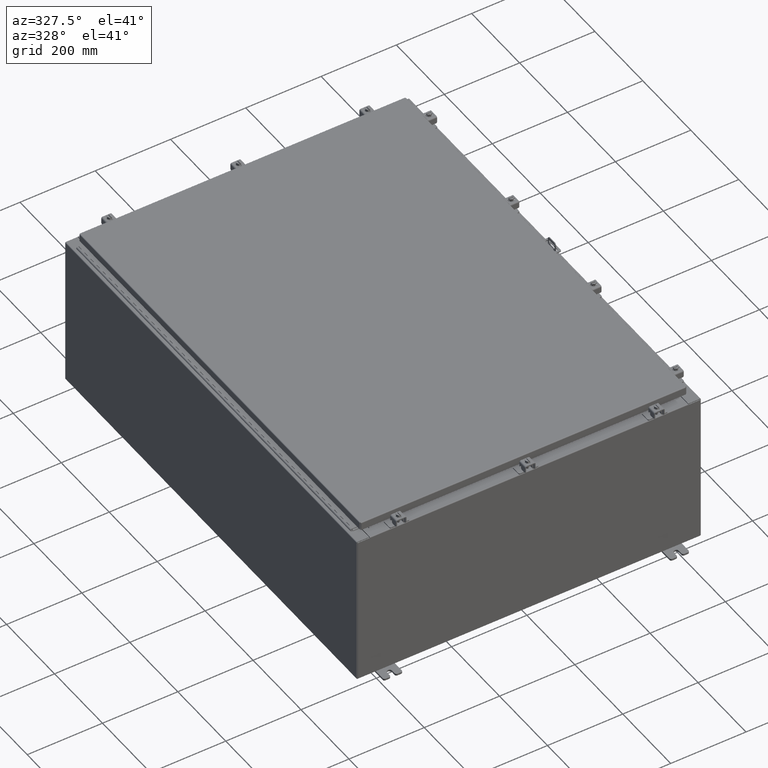
[diagram: clean part render]
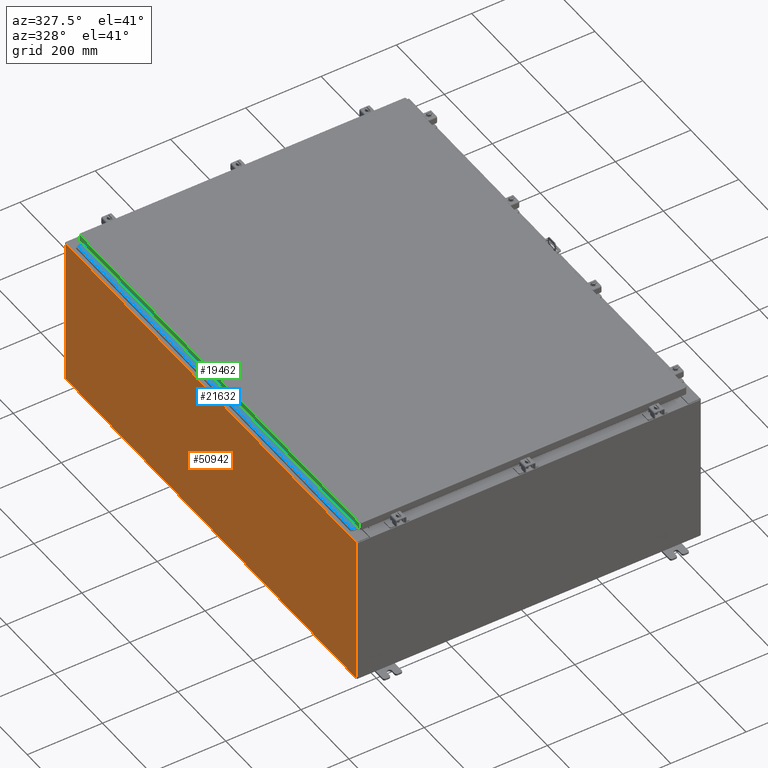
[diagram: same view with three faces highlighted in distinct colors, each labeled with its STEP entity id]
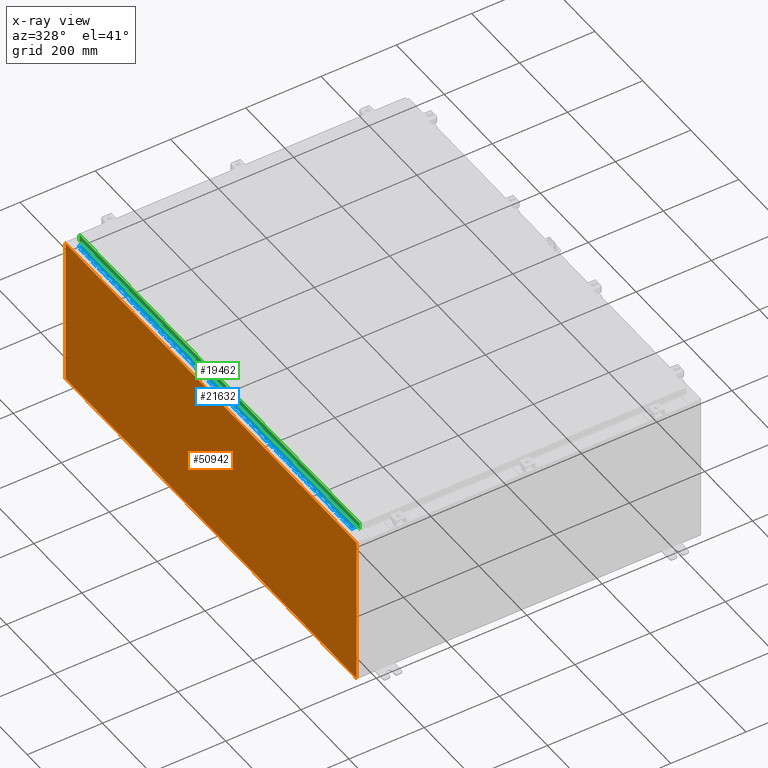
[diagram: x-ray of the same camera — body ghosted, the three highlighted faces saturated]
A machine part, auxiliary view with three faces highlighted in distinct colors.
The next image is the same camera in x-ray (body ghosted, the three faces saturated) — at least one of them is partly hidden behind the body in this view.
Their STEP definitions:

[orange] entity #50942 — the highlighted planar face has unit normal (1, 0, 0).
#1886 = VERTEX_POINT ( 'NONE', #4012 ) ;
#3264 = LINE ( 'NONE', #15443, #12974 ) ;
#4012 = CARTESIAN_POINT ( 'NONE',  ( -18.00000000000006000, 23.92529999999998900, 15.83759999999999500 ) ) ;
#6114 = CARTESIAN_POINT ( 'NONE',  ( -18.00000000000000400, 23.92529999999998900, 0.01299999999999984700 ) ) ;
#8037 = EDGE_CURVE ( 'NONE', #1886, #47768, #35967, .T. ) ;
#8435 = ORIENTED_EDGE ( 'NONE', *, *, #24844, .T. ) ;
#12974 = VECTOR ( 'NONE', #36448, 39.37007874015748100 ) ;
#14668 = VECTOR ( 'NONE', #26290, 39.37007874015748100 ) ;
#15188 = PLANE ( 'NONE',  #23007 ) ;
#15443 = CARTESIAN_POINT ( 'NONE',  ( -18.00000000000006000, -23.92529999999998900, 15.83759999999998200 ) ) ;
#15973 = LINE ( 'NONE', #22044, #14668 ) ;
#18642 = DIRECTION ( 'NONE',  ( -0.0000000000000000000, 1.000000000000000000, -0.0000000000000000000 ) ) ;
#20099 = VERTEX_POINT ( 'NONE', #46420 ) ;
#21115 = CARTESIAN_POINT ( 'NONE',  ( -18.00000000000000400, 23.92529999999998900, -6.201571169367085800E-014 ) ) ;
#21656 = ORIENTED_EDGE ( 'NONE', *, *, #8037, .T. ) ;
#22044 = CARTESIAN_POINT ( 'NONE',  ( -18.00000000000000400, -23.92529999999999600, -6.201571169367085800E-014 ) ) ;
#23007 = AXIS2_PLACEMENT_3D ( 'NONE', #40231, #48588, #23645 ) ;
#23645 = DIRECTION ( 'NONE',  ( 3.430827668758847900E-015, 0.0000000000000000000, -1.000000000000000000 ) ) ;
#24844 = EDGE_CURVE ( 'NONE', #20099, #32198, #15973, .T. ) ;
#25796 = ORIENTED_EDGE ( 'NONE', *, *, #51622, .F. ) ;
#26290 = DIRECTION ( 'NONE',  ( -3.430827668758847900E-015, 0.0000000000000000000, 1.000000000000000000 ) ) ;
#26923 = EDGE_LOOP ( 'NONE', ( #34397, #21656, #25796, #8435 ) ) ;
#29895 = EDGE_CURVE ( 'NONE', #32198, #1886, #3264, .T. ) ;
#32198 = VERTEX_POINT ( 'NONE', #51982 ) ;
#34397 = ORIENTED_EDGE ( 'NONE', *, *, #29895, .T. ) ;
#34657 = VECTOR ( 'NONE', #38072, 39.37007874015748100 ) ;
#35967 = LINE ( 'NONE', #21115, #34657 ) ;
#36448 = DIRECTION ( 'NONE',  ( 0.0000000000000000000, 1.000000000000000000, 0.0000000000000000000 ) ) ;
#38072 = DIRECTION ( 'NONE',  ( 3.430827668758847900E-015, 0.0000000000000000000, -1.000000000000000000 ) ) ;
#40231 = CARTESIAN_POINT ( 'NONE',  ( -18.00000000000000400, 0.0000000000000000000, -6.201571169367085800E-014 ) ) ;
#42695 = LINE ( 'NONE', #6114, #53716 ) ;
#44245 = CARTESIAN_POINT ( 'NONE',  ( -18.00000000000000400, 23.92529999999998900, 0.01299999999999984800 ) ) ;
#46420 = CARTESIAN_POINT ( 'NONE',  ( -18.00000000000000400, -23.92529999999998600, 0.01299999999999984700 ) ) ;
#47768 = VERTEX_POINT ( 'NONE', #44245 ) ;
#48588 = DIRECTION ( 'NONE',  ( 1.000000000000000000, 0.0000000000000000000, 3.430827668758847900E-015 ) ) ;
#50537 = FACE_OUTER_BOUND ( 'NONE', #26923, .T. ) ;
#50942 = ADVANCED_FACE ( 'NONE', ( #50537 ), #15188, .F. ) ;
#51622 = EDGE_CURVE ( 'NONE', #20099, #47768, #42695, .T. ) ;
#51982 = CARTESIAN_POINT ( 'NONE',  ( -18.00000000000006000, -23.92529999999998600, 15.83759999999998200 ) ) ;
#53716 = VECTOR ( 'NONE', #18642, 39.37007874015748100 ) ;

[blue] entity #21632 — the highlighted planar face has unit normal (-0, -0, 1).
#5 = DIRECTION ( 'NONE',  ( -3.389037039080723100E-015, -1.000000000000000000, 0.0000000000000000000 ) ) ;
#29 = DIRECTION ( 'NONE',  ( 0.0000000000000000000, -0.0000000000000000000, -1.000000000000000000 ) ) ;
#74 = VERTEX_POINT ( 'NONE', #32619 ) ;
#78 = EDGE_CURVE ( 'NONE', #37763, #10279, #117, .T. ) ;
#89 = CARTESIAN_POINT ( 'NONE',  ( -0.6869999999999982800, 0.5504999999999997700, -9.000000000000000000 ) ) ;
#111 = DIRECTION ( 'NONE',  ( 3.389037039080723100E-015, 1.000000000000000000, -0.0000000000000000000 ) ) ;
#117 = LINE ( 'NONE', #51812, #19637 ) ;
#118 = LINE ( 'NONE', #9710, #44455 ) ;
#126 = CARTESIAN_POINT ( 'NONE',  ( -0.6869999999999978300, 0.6754999999999996600, -45.00000000000000000 ) ) ;
#141 = CARTESIAN_POINT ( 'NONE',  ( -0.6869999999999982800, 0.5504999999999997700, -22.50000000000000000 ) ) ;
#167 = CARTESIAN_POINT ( 'NONE',  ( -0.6869999999999978300, 0.6754999999999996600, -45.00000000000000000 ) ) ;
#213 = VERTEX_POINT ( 'NONE', #50766 ) ;
#237 = ORIENTED_EDGE ( 'NONE', *, *, #50059, .F. ) ;
#258 = VERTEX_POINT ( 'NONE', #47457 ) ;
#334 = LINE ( 'NONE', #33295, #22473 ) ;
#389 = VERTEX_POINT ( 'NONE', #33316 ) ;
#394 = ORIENTED_EDGE ( 'NONE', *, *, #37991, .T. ) ;
#477 = EDGE_CURVE ( 'NONE', #2790, #32248, #34603, .T. ) ;
#482 = LINE ( 'NONE', #49211, #43520 ) ;
#498 = DIRECTION ( 'NONE',  ( 0.0000000000000000000, 0.0000000000000000000, 1.000000000000000000 ) ) ;
#535 = CARTESIAN_POINT ( 'NONE',  ( -0.6869999999999982800, 0.5504999999999997700, -12.99999999999999800 ) ) ;
#578 = VECTOR ( 'NONE', #11465, 39.37007874015748100 ) ;
#599 = LINE ( 'NONE', #8251, #21414 ) ;
#612 = VECTOR ( 'NONE', #1760, 39.37007874015748100 ) ;
#629 = LINE ( 'NONE', #46803, #43668 ) ;
#647 = VERTEX_POINT ( 'NONE', #31456 ) ;
#716 = VERTEX_POINT ( 'NONE', #34527 ) ;
#725 = VECTOR ( 'NONE', #43236, 39.37007874015748100 ) ;
#739 = VECTOR ( 'NONE', #22123, 39.37007874015748100 ) ;
#763 = DIRECTION ( 'NONE',  ( 3.369016658928398200E-015, 1.000000000000000000, 0.0000000000000000000 ) ) ;
#826 = DIRECTION ( 'NONE',  ( 0.0000000000000000000, 0.0000000000000000000, 1.000000000000000000 ) ) ;
#839 = DIRECTION ( 'NONE',  ( 3.389037039080723100E-015, 1.000000000000000000, -0.0000000000000000000 ) ) ;
#850 = VECTOR ( 'NONE', #32272, 39.37007874015748100 ) ;
#939 = ORIENTED_EDGE ( 'NONE', *, *, #34959, .F. ) ;
#967 = VECTOR ( 'NONE', #38173, 39.37007874015748100 ) ;
#998 = VECTOR ( 'NONE', #24132, 39.37007874015748100 ) ;
#1017 = VERTEX_POINT ( 'NONE', #20444 ) ;
#1053 = EDGE_CURVE ( 'NONE', #31431, #39988, #9756, .T. ) ;
#1108 = CARTESIAN_POINT ( 'NONE',  ( -0.6870000000000022800, -0.6245000000000003900, 0.0000000000000000000 ) ) ;
#1133 = EDGE_CURVE ( 'NONE', #30828, #22228, #48867, .T. ) ;
#1185 = ORIENTED_EDGE ( 'NONE', *, *, #40002, .F. ) ;
#1200 = LINE ( 'NONE', #14971, #22024 ) ;
#1223 = ORIENTED_EDGE ( 'NONE', *, *, #477, .F. ) ;
#1308 = DIRECTION ( 'NONE',  ( 3.389037039080723100E-015, 1.000000000000000000, -0.0000000000000000000 ) ) ;
#1310 = VECTOR ( 'NONE', #6140, 39.37007874015748100 ) ;
#1364 = CARTESIAN_POINT ( 'NONE',  ( -0.6869999999999978300, 0.6754999999999996600, -24.99999999999999600 ) ) ;
#1373 = CARTESIAN_POINT ( 'NONE',  ( -0.6869999999999973900, 0.8004999999999995500, -32.50000000000000000 ) ) ;
#1392 = VECTOR ( 'NONE', #27932, 39.37007874015748100 ) ;
#1434 = ORIENTED_EDGE ( 'NONE', *, *, #47303, .F. ) ;
#1469 = ORIENTED_EDGE ( 'NONE', *, *, #45297, .F. ) ;
#1474 = ORIENTED_EDGE ( 'NONE', *, *, #18105, .F. ) ;
#1508 = CARTESIAN_POINT ( 'NONE',  ( -0.6869999999999982800, 0.5504999999999997700, -14.00000000000000000 ) ) ;
#1536 = LINE ( 'NONE', #30491, #22358 ) ;
#1598 = CARTESIAN_POINT ( 'NONE',  ( -0.6869999999999982800, 0.5504999999999997700, -32.50000000000000000 ) ) ;
#1691 = LINE ( 'NONE', #49205, #11405 ) ;
#1710 = DIRECTION ( 'NONE',  ( -3.389037039080723100E-015, -1.000000000000000000, 0.0000000000000000000 ) ) ;
#1758 = CARTESIAN_POINT ( 'NONE',  ( -0.6869999999999982800, 0.5504999999999997700, -4.500000000000000000 ) ) ;
#1760 = DIRECTION ( 'NONE',  ( 0.0000000000000000000, 0.0000000000000000000, 1.000000000000000000 ) ) ;
#1761 = EDGE_CURVE ( 'NONE', #213, #2490, #599, .T. ) ;
#1821 = VERTEX_POINT ( 'NONE', #45221 ) ;
#1823 = DIRECTION ( 'NONE',  ( 0.0000000000000000000, -0.0000000000000000000, -1.000000000000000000 ) ) ;
#1846 = DIRECTION ( 'NONE',  ( -3.389037039080723100E-015, -1.000000000000000000, 0.0000000000000000000 ) ) ;
#1854 = CARTESIAN_POINT ( 'NONE',  ( -0.6869999999999982800, 0.5504999999999997700, -41.00000000000000700 ) ) ;
#1858 = CARTESIAN_POINT ( 'NONE',  ( -0.6869999999999978300, 0.6754999999999996600, -14.49999999999999800 ) ) ;
#1863 = CARTESIAN_POINT ( 'NONE',  ( -0.6869999999999982800, 0.5504999999999997700, -16.50000000000000000 ) ) ;
#1898 = DIRECTION ( 'NONE',  ( -3.389037039080723100E-015, -1.000000000000000000, 0.0000000000000000000 ) ) ;
#1912 = VECTOR ( 'NONE', #47869, 39.37007874015748100 ) ;
#1931 = LINE ( 'NONE', #26717, #612 ) ;
#1943 = LINE ( 'NONE', #15767, #44931 ) ;
#1944 = VERTEX_POINT ( 'NONE', #36890 ) ;
#1970 = ORIENTED_EDGE ( 'NONE', *, *, #34258, .F. ) ;
#1986 = CARTESIAN_POINT ( 'NONE',  ( -0.6869999999999978300, 0.6754999999999996600, -43.00000000000000700 ) ) ;
#1996 = EDGE_CURVE ( 'NONE', #11473, #46223, #43898, .T. ) ;
#2008 = VECTOR ( 'NONE', #41955, 39.37007874015748100 ) ;
#2035 = EDGE_CURVE ( 'NONE', #7271, #34533, #52317, .T. ) ;
#2056 = CARTESIAN_POINT ( 'NONE',  ( -0.6869999999999978300, 0.6754999999999996600, -22.50000000000000000 ) ) ;
#2070 = CARTESIAN_POINT ( 'NONE',  ( -0.6869999999999978300, 0.6754999999999996600, -32.50000000000000000 ) ) ;
#2092 = EDGE_CURVE ( 'NONE', #36854, #11828, #27614, .T. ) ;
#2117 = ORIENTED_EDGE ( 'NONE', *, *, #51337, .F. ) ;
#2129 = ORIENTED_EDGE ( 'NONE', *, *, #34904, .F. ) ;
#2149 = CARTESIAN_POINT ( 'NONE',  ( -0.6869999999999978300, 0.6754999999999996600, -11.50000000000000000 ) ) ;
#2221 = LINE ( 'NONE', #29841, #13208 ) ;
#2309 = LINE ( 'NONE', #20068, #998 ) ;
#2330 = LINE ( 'NONE', #38970, #23167 ) ;
#2355 = LINE ( 'NONE', #12599, #45345 ) ;
#2372 = VECTOR ( 'NONE', #10158, 39.37007874015748100 ) ;
#2385 = DIRECTION ( 'NONE',  ( -3.389037039080723100E-015, -1.000000000000000000, 0.0000000000000000000 ) ) ;
#2451 = CARTESIAN_POINT ( 'NONE',  ( -0.6869999999999982800, 0.5504999999999997700, -29.99999999999999600 ) ) ;
#2460 = VECTOR ( 'NONE', #13020, 39.37007874015748100 ) ;
#2475 = CARTESIAN_POINT ( 'NONE',  ( -0.6869999999999982800, 0.5504999999999997700, -8.500000000000000000 ) ) ;
#2490 = VERTEX_POINT ( 'NONE', #13421 ) ;
#2501 = EDGE_CURVE ( 'NONE', #36373, #13579, #9239, .T. ) ;
#2519 = CARTESIAN_POINT ( 'NONE',  ( -0.6869999999999982800, 0.5504999999999997700, -0.5000000000000000000 ) ) ;
#2660 = EDGE_CURVE ( 'NONE', #7223, #52124, #118, .T. ) ;
#2668 = DIRECTION ( 'NONE',  ( 0.0000000000000000000, 0.0000000000000000000, 1.000000000000000000 ) ) ;
#2683 = ORIENTED_EDGE ( 'NONE', *, *, #34778, .F. ) ;
#2708 = VECTOR ( 'NONE', #41470, 39.37007874015748100 ) ;
#2767 = VERTEX_POINT ( 'NONE', #24548 ) ;
#2787 = LINE ( 'NONE', #43334, #44495 ) ;
#2790 = VERTEX_POINT ( 'NONE', #43708 ) ;
#2814 = ORIENTED_EDGE ( 'NONE', *, *, #31227, .T. ) ;
#2913 = ORIENTED_EDGE ( 'NONE', *, *, #27191, .F. ) ;
#2954 = CARTESIAN_POINT ( 'NONE',  ( -0.6869999999999978300, 0.6754999999999996600, -31.00000000000000000 ) ) ;
#3036 = VECTOR ( 'NONE', #12977, 39.37007874015748100 ) ;
#3080 = CARTESIAN_POINT ( 'NONE',  ( -0.6869999999999978300, 0.6754999999999996600, -41.49999999999999300 ) ) ;
#3092 = CARTESIAN_POINT ( 'NONE',  ( -0.6869999999999978300, 0.6754999999999996600, -45.00000000000000000 ) ) ;
#3099 = CARTESIAN_POINT ( 'NONE',  ( -0.6869999999999982800, 0.5504999999999997700, -12.49999999999999800 ) ) ;
#3182 = VECTOR ( 'NONE', #11386, 39.37007874015748100 ) ;
#3206 = CARTESIAN_POINT ( 'NONE',  ( -0.6869999999999978300, 0.6754999999999996600, -45.00000000000000000 ) ) ;
#3319 = VECTOR ( 'NONE', #20270, 39.37007874015748100 ) ;
#3342 = DIRECTION ( 'NONE',  ( 0.0000000000000000000, -0.0000000000000000000, -1.000000000000000000 ) ) ;
#3420 = VERTEX_POINT ( 'NONE', #27449 ) ;
#3429 = EDGE_CURVE ( 'NONE', #13299, #15414, #5201, .T. ) ;
#3456 = ORIENTED_EDGE ( 'NONE', *, *, #46014, .F. ) ;
#3469 = CARTESIAN_POINT ( 'NONE',  ( -0.6869999999999978300, 0.6754999999999996600, -12.99999999999999800 ) ) ;
#3470 = VERTEX_POINT ( 'NONE', #3909 ) ;
#3487 = ORIENTED_EDGE ( 'NONE', *, *, #33731, .F. ) ;
#3559 = ORIENTED_EDGE ( 'NONE', *, *, #46242, .T. ) ;
#3593 = CARTESIAN_POINT ( 'NONE',  ( -0.6869999999999982800, 0.5504999999999997700, -20.00000000000000000 ) ) ;
#3609 = ORIENTED_EDGE ( 'NONE', *, *, #26391, .T. ) ;
#3650 = ORIENTED_EDGE ( 'NONE', *, *, #16304, .F. ) ;
#3715 = LINE ( 'NONE', #42259, #2460 ) ;
#3723 = VECTOR ( 'NONE', #26672, 39.37007874015748100 ) ;
#3773 = ORIENTED_EDGE ( 'NONE', *, *, #10359, .F. ) ;
#3821 = VERTEX_POINT ( 'NONE', #22809 ) ;
#3889 = EDGE_CURVE ( 'NONE', #33823, #48135, #35829, .T. ) ;
#3909 = CARTESIAN_POINT ( 'NONE',  ( -0.6869999999999982800, 0.5504999999999997700, -35.50000000000000000 ) ) ;
#3953 = ORIENTED_EDGE ( 'NONE', *, *, #44319, .F. ) ;
#3960 = LINE ( 'NONE', #53963, #2708 ) ;
#3993 = ORIENTED_EDGE ( 'NONE', *, *, #50580, .T. ) ;
#4033 = DIRECTION ( 'NONE',  ( 0.0000000000000000000, -0.0000000000000000000, -1.000000000000000000 ) ) ;
#4080 = VERTEX_POINT ( 'NONE', #17739 ) ;
#4127 = LINE ( 'NONE', #18587, #36114 ) ;
#4154 = DIRECTION ( 'NONE',  ( -3.389037039080723100E-015, -1.000000000000000000, 0.0000000000000000000 ) ) ;
#4185 = ORIENTED_EDGE ( 'NONE', *, *, #20862, .T. ) ;
#4200 = VERTEX_POINT ( 'NONE', #27415 ) ;
#4262 = CARTESIAN_POINT ( 'NONE',  ( -0.6869999999999973900, 0.8004999999999995500, -12.49999999999999800 ) ) ;
#4308 = LINE ( 'NONE', #38821, #49947 ) ;
#4499 = VERTEX_POINT ( 'NONE', #42411 ) ;
#4531 = ORIENTED_EDGE ( 'NONE', *, *, #32905, .F. ) ;
#4544 = DIRECTION ( 'NONE',  ( -3.389037039080723100E-015, -1.000000000000000000, 0.0000000000000000000 ) ) ;
#4620 = CARTESIAN_POINT ( 'NONE',  ( -0.6869999999999982800, 0.5504999999999997700, -39.49999999999999300 ) ) ;
#4666 = VECTOR ( 'NONE', #4544, 39.37007874015748100 ) ;
#4700 = VERTEX_POINT ( 'NONE', #1598 ) ;
#4708 = CARTESIAN_POINT ( 'NONE',  ( -0.6869999999999982800, 0.5504999999999997700, -24.50000000000000000 ) ) ;
#4716 = DIRECTION ( 'NONE',  ( 0.0000000000000000000, -0.0000000000000000000, -1.000000000000000000 ) ) ;
#4724 = LINE ( 'NONE', #13862, #47761 ) ;
#4768 = ORIENTED_EDGE ( 'NONE', *, *, #16355, .F. ) ;
#4776 = VECTOR ( 'NONE', #28672, 39.37007874015748100 ) ;
#4820 = CARTESIAN_POINT ( 'NONE',  ( -0.6869999999999978300, 0.6754999999999996600, -2.500000000000000000 ) ) ;
#4825 = LINE ( 'NONE', #46751, #15869 ) ;
#4837 = VERTEX_POINT ( 'NONE', #31499 ) ;
#4899 = VERTEX_POINT ( 'NONE', #13010 ) ;
#4953 = CARTESIAN_POINT ( 'NONE',  ( -0.6869999999999978300, 0.6754999999999996600, -45.00000000000000000 ) ) ;
#4958 = ORIENTED_EDGE ( 'NONE', *, *, #16116, .F. ) ;
#5012 = DIRECTION ( 'NONE',  ( -3.389037039080723100E-015, -1.000000000000000000, 0.0000000000000000000 ) ) ;
#5084 = ORIENTED_EDGE ( 'NONE', *, *, #15178, .T. ) ;
#5144 = CARTESIAN_POINT ( 'NONE',  ( -0.6869999999999973900, 0.8004999999999995500, -32.00000000000000000 ) ) ;
#5151 = EDGE_CURVE ( 'NONE', #52279, #25623, #23895, .T. ) ;
#5181 = LINE ( 'NONE', #47493, #26093 ) ;
#5201 = LINE ( 'NONE', #11922, #48236 ) ;
#5213 = CARTESIAN_POINT ( 'NONE',  ( -0.6869999999999973900, 0.8004999999999995500, -17.99999999999999600 ) ) ;
#5216 = CARTESIAN_POINT ( 'NONE',  ( -0.6869999999999978300, 0.6754999999999996600, -7.499999999999999100 ) ) ;
#5232 = DIRECTION ( 'NONE',  ( 3.389037039080723100E-015, 1.000000000000000000, -0.0000000000000000000 ) ) ;
#5262 = CARTESIAN_POINT ( 'NONE',  ( -0.6869999999999973900, 0.8004999999999995500, -10.00000000000000000 ) ) ;
#5294 = CARTESIAN_POINT ( 'NONE',  ( -0.6869999999999973900, 0.8004999999999995500, -10.50000000000000000 ) ) ;
#5329 = CARTESIAN_POINT ( 'NONE',  ( -0.6869999999999982800, 0.5504999999999997700, -10.50000000000000000 ) ) ;
#5404 = VECTOR ( 'NONE', #11906, 39.37007874015748100 ) ;
#5432 = VERTEX_POINT ( 'NONE', #26558 ) ;
#5433 = VERTEX_POINT ( 'NONE', #21040 ) ;
#5453 = CARTESIAN_POINT ( 'NONE',  ( -0.6869999999999973900, 0.8004999999999995500, -23.99999999999999600 ) ) ;
#5463 = CARTESIAN_POINT ( 'NONE',  ( -0.6869999999999978300, 0.6754999999999996600, -40.00000000000000000 ) ) ;
#5508 = LINE ( 'NONE', #29347, #49838 ) ;
#5528 = ORIENTED_EDGE ( 'NONE', *, *, #29976, .T. ) ;
#5551 = CARTESIAN_POINT ( 'NONE',  ( -0.6869999999999982800, 0.5504999999999997700, -34.00000000000000000 ) ) ;
#5615 = LINE ( 'NONE', #34442, #26542 ) ;
#5650 = EDGE_CURVE ( 'NONE', #26347, #6582, #21184, .T. ) ;
#5683 = DIRECTION ( 'NONE',  ( -3.389037039080723100E-015, -1.000000000000000000, 0.0000000000000000000 ) ) ;
#5758 = DIRECTION ( 'NONE',  ( 3.389037039080723100E-015, 1.000000000000000000, -0.0000000000000000000 ) ) ;
#5810 = LINE ( 'NONE', #15536, #15548 ) ;
#5826 = VECTOR ( 'NONE', #7803, 39.37007874015748100 ) ;
#5931 = LINE ( 'NONE', #45756, #48955 ) ;
#5940 = EDGE_CURVE ( 'NONE', #6409, #31014, #42729, .T. ) ;
#5965 = VERTEX_POINT ( 'NONE', #27824 ) ;
#6057 = EDGE_CURVE ( 'NONE', #46052, #35921, #5508, .T. ) ;
#6060 = ORIENTED_EDGE ( 'NONE', *, *, #27758, .T. ) ;
#6072 = VERTEX_POINT ( 'NONE', #23151 ) ;
#6087 = LINE ( 'NONE', #7306, #50398 ) ;
#6127 = EDGE_CURVE ( 'NONE', #43491, #27396, #36182, .T. ) ;
#6140 = DIRECTION ( 'NONE',  ( -3.389037039080723100E-015, -1.000000000000000000, 0.0000000000000000000 ) ) ;
#6171 = DIRECTION ( 'NONE',  ( 0.0000000000000000000, 0.0000000000000000000, 1.000000000000000000 ) ) ;
#6229 = VERTEX_POINT ( 'NONE', #50441 ) ;
#6246 = CARTESIAN_POINT ( 'NONE',  ( -0.6869999999999998300, 0.07549999999999991400, 0.0000000000000000000 ) ) ;
#6257 = VERTEX_POINT ( 'NONE', #29727 ) ;
#6260 = DIRECTION ( 'NONE',  ( -3.389037039080723100E-015, -1.000000000000000000, 0.0000000000000000000 ) ) ;
#6288 = EDGE_CURVE ( 'NONE', #45139, #37366, #29675, .T. ) ;
#6326 = DIRECTION ( 'NONE',  ( -3.389037039080723100E-015, -1.000000000000000000, 0.0000000000000000000 ) ) ;
#6352 = EDGE_CURVE ( 'NONE', #9517, #716, #14568, .T. ) ;
#6358 = CARTESIAN_POINT ( 'NONE',  ( -0.6869999999999982800, 0.5504999999999997700, -27.50000000000000000 ) ) ;
#6363 = VERTEX_POINT ( 'NONE', #4708 ) ;
#6390 = CARTESIAN_POINT ( 'NONE',  ( -0.6869999999999973900, 0.8004999999999995500, -20.50000000000000400 ) ) ;
#6400 = DIRECTION ( 'NONE',  ( 0.0000000000000000000, -0.0000000000000000000, -1.000000000000000000 ) ) ;
#6409 = VERTEX_POINT ( 'NONE', #42103 ) ;
#6443 = EDGE_CURVE ( 'NONE', #42800, #27093, #51109, .T. ) ;
#6469 = VERTEX_POINT ( 'NONE', #1508 ) ;
#6512 = VECTOR ( 'NONE', #51743, 39.37007874015748100 ) ;
#6514 = VECTOR ( 'NONE', #25992, 39.37007874015748100 ) ;
#6542 = DIRECTION ( 'NONE',  ( -3.389037039080723100E-015, -1.000000000000000000, 0.0000000000000000000 ) ) ;
#6582 = VERTEX_POINT ( 'NONE', #8886 ) ;
#6608 = CARTESIAN_POINT ( 'NONE',  ( -0.6869999999999982800, 0.5504999999999997700, -23.99999999999999600 ) ) ;
#6621 = CARTESIAN_POINT ( 'NONE',  ( -0.6869999999999982800, 0.5504999999999997700, -33.50000000000000000 ) ) ;
#6647 = ORIENTED_EDGE ( 'NONE', *, *, #18923, .F. ) ;
#6680 = DIRECTION ( 'NONE',  ( 0.0000000000000000000, -0.0000000000000000000, -1.000000000000000000 ) ) ;
#6702 = DIRECTION ( 'NONE',  ( -3.389037039080723100E-015, -1.000000000000000000, 0.0000000000000000000 ) ) ;
#6744 = VECTOR ( 'NONE', #23983, 39.37007874015748100 ) ;
#6779 = LINE ( 'NONE', #1373, #49782 ) ;
#6882 = VECTOR ( 'NONE', #30930, 39.37007874015748100 ) ;
#6945 = VECTOR ( 'NONE', #41245, 39.37007874015748100 ) ;
#6962 = DIRECTION ( 'NONE',  ( 0.0000000000000000000, -0.0000000000000000000, -1.000000000000000000 ) ) ;
#7051 = CARTESIAN_POINT ( 'NONE',  ( -0.6869999999999978300, 0.6754999999999996600, -44.49999999999999300 ) ) ;
#7098 = VECTOR ( 'NONE', #34771, 39.37007874015748100 ) ;
#7157 = CARTESIAN_POINT ( 'NONE',  ( -0.6869999999999982800, 0.5504999999999997700, -4.000000000000000000 ) ) ;
#7189 = EDGE_CURVE ( 'NONE', #11708, #30910, #32184, .T. ) ;
#7196 = EDGE_CURVE ( 'NONE', #15400, #25623, #11271, .T. ) ;
#7223 = VERTEX_POINT ( 'NONE', #29041 ) ;
#7271 = VERTEX_POINT ( 'NONE', #49738 ) ;
#7274 = EDGE_CURVE ( 'NONE', #1821, #15719, #4724, .T. ) ;
#7287 = VECTOR ( 'NONE', #33463, 39.37007874015748100 ) ;
#7306 = CARTESIAN_POINT ( 'NONE',  ( -0.6869999999999973900, 0.8004999999999995500, -33.00000000000000000 ) ) ;
#7403 = LINE ( 'NONE', #34440, #9999 ) ;
#7408 = LINE ( 'NONE', #5262, #29612 ) ;
#7539 = VERTEX_POINT ( 'NONE', #1854 ) ;
#7554 = VECTOR ( 'NONE', #6400, 39.37007874015748100 ) ;
#7645 = VECTOR ( 'NONE', #21732, 39.37007874015748100 ) ;
#7668 = LINE ( 'NONE', #35043, #40959 ) ;
#7689 = CARTESIAN_POINT ( 'NONE',  ( -0.6869999999999982800, 0.5504999999999997700, -16.00000000000000000 ) ) ;
#7702 = VECTOR ( 'NONE', #45708, 39.37007874015748100 ) ;
#7723 = VERTEX_POINT ( 'NONE', #38274 ) ;
#7747 = LINE ( 'NONE', #4262, #28660 ) ;
#7777 = EDGE_CURVE ( 'NONE', #40571, #16094, #46410, .T. ) ;
#7786 = LINE ( 'NONE', #29913, #39778 ) ;
#7796 = ORIENTED_EDGE ( 'NONE', *, *, #43512, .F. ) ;
#7803 = DIRECTION ( 'NONE',  ( 0.0000000000000000000, -0.0000000000000000000, -1.000000000000000000 ) ) ;
#7822 = VERTEX_POINT ( 'NONE', #25043 ) ;
#7862 = EDGE_CURVE ( 'NONE', #7539, #39450, #53551, .T. ) ;
#7934 = CARTESIAN_POINT ( 'NONE',  ( -0.6869999999999978300, 0.6754999999999996600, -43.50000000000000000 ) ) ;
#7966 = CARTESIAN_POINT ( 'NONE',  ( -0.6869999999999982800, 0.5504999999999997700, -30.50000000000000400 ) ) ;
#8134 = LINE ( 'NONE', #43721, #29052 ) ;
#8145 = ORIENTED_EDGE ( 'NONE', *, *, #37858, .F. ) ;
#8202 = LINE ( 'NONE', #1108, #19269 ) ;
#8251 = CARTESIAN_POINT ( 'NONE',  ( -0.6869999999999982800, 0.5504999999999997700, -42.50000000000000000 ) ) ;
#8258 = CARTESIAN_POINT ( 'NONE',  ( -0.6869999999999978300, 0.6754999999999996600, -45.00000000000000000 ) ) ;
#8297 = DIRECTION ( 'NONE',  ( -3.389037039080723100E-015, -1.000000000000000000, 0.0000000000000000000 ) ) ;
#8334 = EDGE_CURVE ( 'NONE', #11708, #40109, #30086, .T. ) ;
#8429 = DIRECTION ( 'NONE',  ( 0.0000000000000000000, -0.0000000000000000000, -1.000000000000000000 ) ) ;
#8475 = VERTEX_POINT ( 'NONE', #13980 ) ;
#8569 = VECTOR ( 'NONE', #41854, 39.37007874015748100 ) ;
#8571 = CARTESIAN_POINT ( 'NONE',  ( -0.6869999999999978300, 0.6754999999999996600, -45.00000000000000000 ) ) ;
#8608 = VERTEX_POINT ( 'NONE', #15701 ) ;
#8628 = VERTEX_POINT ( 'NONE', #15306 ) ;
#8686 = EDGE_CURVE ( 'NONE', #716, #36427, #9671, .T. ) ;
#8723 = CARTESIAN_POINT ( 'NONE',  ( -0.6869999999999978300, 0.6754999999999996600, -35.50000000000000000 ) ) ;
#8886 = CARTESIAN_POINT ( 'NONE',  ( -0.6869999999999978300, 0.6754999999999996600, -16.00000000000000000 ) ) ;
#8897 = CARTESIAN_POINT ( 'NONE',  ( -0.6869999999999978300, 0.6754999999999996600, -2.000000000000000000 ) ) ;
#8968 = EDGE_CURVE ( 'NONE', #5433, #51992, #39661, .T. ) ;
#8985 = CARTESIAN_POINT ( 'NONE',  ( -0.6869999999999982800, 0.5504999999999997700, -40.50000000000000000 ) ) ;
#9049 = LINE ( 'NONE', #8258, #50765 ) ;
#9093 = CARTESIAN_POINT ( 'NONE',  ( -0.6869999999999973900, 0.8004999999999995500, -40.50000000000000000 ) ) ;
#9098 = VECTOR ( 'NONE', #50808, 39.37007874015748100 ) ;
#9104 = VECTOR ( 'NONE', #34403, 39.37007874015748100 ) ;
#9128 = ORIENTED_EDGE ( 'NONE', *, *, #6057, .F. ) ;
#9212 = ORIENTED_EDGE ( 'NONE', *, *, #1053, .F. ) ;
#9238 = VERTEX_POINT ( 'NONE', #5216 ) ;
#9239 = LINE ( 'NONE', #23136, #52264 ) ;
#9241 = ORIENTED_EDGE ( 'NONE', *, *, #2035, .F. ) ;
#9340 = EDGE_CURVE ( 'NONE', #13791, #6469, #44828, .T. ) ;
#9431 = DIRECTION ( 'NONE',  ( -3.389037039080723100E-015, -1.000000000000000000, 0.0000000000000000000 ) ) ;
#9437 = CARTESIAN_POINT ( 'NONE',  ( -0.6869999999999982800, 0.5504999999999997700, -36.50000000000000000 ) ) ;
#9480 = DIRECTION ( 'NONE',  ( 0.0000000000000000000, 0.0000000000000000000, 1.000000000000000000 ) ) ;
#9517 = VERTEX_POINT ( 'NONE', #20532 ) ;
#9606 = CARTESIAN_POINT ( 'NONE',  ( -0.6869999999999973900, 0.8004999999999995500, -31.00000000000000000 ) ) ;
#9627 = CARTESIAN_POINT ( 'NONE',  ( -0.6869999999999978300, 0.6754999999999996600, -0.5000000000000000000 ) ) ;
#9654 = ORIENTED_EDGE ( 'NONE', *, *, #29363, .F. ) ;
#9671 = LINE ( 'NONE', #30110, #30603 ) ;
#9672 = VERTEX_POINT ( 'NONE', #20703 ) ;
#9679 = LINE ( 'NONE', #47262, #30612 ) ;
#9695 = ORIENTED_EDGE ( 'NONE', *, *, #44451, .F. ) ;
#9710 = CARTESIAN_POINT ( 'NONE',  ( -0.6869999999999973900, 0.8004999999999995500, -7.000000000000000000 ) ) ;
#9756 = LINE ( 'NONE', #15071, #40448 ) ;
#9842 = VECTOR ( 'NONE', #42865, 39.37007874015748100 ) ;
#9870 = CARTESIAN_POINT ( 'NONE',  ( -0.6869999999999973900, 0.8004999999999995500, -38.50000000000000000 ) ) ;
#9949 = VECTOR ( 'NONE', #21367, 39.37007874015748100 ) ;
#9990 = VERTEX_POINT ( 'NONE', #12572 ) ;
#9999 = VECTOR ( 'NONE', #30297, 39.37007874015748100 ) ;
#10034 = VERTEX_POINT ( 'NONE', #12810 ) ;
#10047 = LINE ( 'NONE', #24679, #19824 ) ;
#10065 = VERTEX_POINT ( 'NONE', #535 ) ;
#10094 = CARTESIAN_POINT ( 'NONE',  ( -0.6869999999999982800, 0.5504999999999997700, -23.00000000000000000 ) ) ;
#10106 = VECTOR ( 'NONE', #18455, 39.37007874015748100 ) ;
#10116 = LINE ( 'NONE', #52393, #45994 ) ;
#10135 = CARTESIAN_POINT ( 'NONE',  ( -0.6869999999999982800, 0.5504999999999997700, -33.00000000000000000 ) ) ;
#10147 = CARTESIAN_POINT ( 'NONE',  ( -0.6869999999999978300, 0.6754999999999996600, -28.00000000000000000 ) ) ;
#10158 = DIRECTION ( 'NONE',  ( 3.389037039080723100E-015, 1.000000000000000000, -0.0000000000000000000 ) ) ;
#10165 = LINE ( 'NONE', #4953, #53200 ) ;
#10198 = ORIENTED_EDGE ( 'NONE', *, *, #30003, .F. ) ;
#10245 = VECTOR ( 'NONE', #51142, 39.37007874015748100 ) ;
#10246 = EDGE_CURVE ( 'NONE', #2767, #32217, #14034, .T. ) ;
#10279 = VERTEX_POINT ( 'NONE', #16344 ) ;
#10332 = ORIENTED_EDGE ( 'NONE', *, *, #38563, .T. ) ;
#10359 = EDGE_CURVE ( 'NONE', #32248, #49400, #42133, .T. ) ;
#10397 = LINE ( 'NONE', #5213, #9104 ) ;
#10417 = ORIENTED_EDGE ( 'NONE', *, *, #7274, .T. ) ;
#10433 = ORIENTED_EDGE ( 'NONE', *, *, #52273, .F. ) ;
#10472 = VECTOR ( 'NONE', #43124, 39.37007874015748100 ) ;
#10524 = ORIENTED_EDGE ( 'NONE', *, *, #44145, .F. ) ;
#10598 = VECTOR ( 'NONE', #19990, 39.37007874015748100 ) ;
#10612 = EDGE_CURVE ( 'NONE', #25180, #10034, #19232, .T. ) ;
#10771 = EDGE_CURVE ( 'NONE', #4700, #20281, #1691, .T. ) ;
#10809 = CARTESIAN_POINT ( 'NONE',  ( -0.6869999999999978300, 0.6754999999999996600, -45.00000000000000000 ) ) ;
#10860 = CARTESIAN_POINT ( 'NONE',  ( -0.6869999999999973900, 0.8004999999999995500, -11.99999999999999800 ) ) ;
#10878 = ORIENTED_EDGE ( 'NONE', *, *, #14380, .F. ) ;
#10958 = CARTESIAN_POINT ( 'NONE',  ( -0.6869999999999973900, 0.8004999999999995500, -42.00000000000000000 ) ) ;
#11068 = CARTESIAN_POINT ( 'NONE',  ( -0.6869999999999978300, 0.6754999999999996600, -38.50000000000000000 ) ) ;
#11107 = CARTESIAN_POINT ( 'NONE',  ( -0.6869999999999982800, 0.5504999999999997700, -43.50000000000000000 ) ) ;
#11113 = CARTESIAN_POINT ( 'NONE',  ( -0.6869999999999973900, 0.8004999999999995500, -17.50000000000000000 ) ) ;
#11180 = ORIENTED_EDGE ( 'NONE', *, *, #13761, .F. ) ;
#11221 = CARTESIAN_POINT ( 'NONE',  ( -0.6869999999999982800, 0.5504999999999997700, -31.00000000000000000 ) ) ;
#11271 = LINE ( 'NONE', #5144, #19735 ) ;
#11290 = ORIENTED_EDGE ( 'NONE', *, *, #31315, .F. ) ;
#11293 = DIRECTION ( 'NONE',  ( 0.0000000000000000000, -0.0000000000000000000, -1.000000000000000000 ) ) ;
#11318 = CARTESIAN_POINT ( 'NONE',  ( -0.6869999999999973900, 0.8004999999999995500, -15.50000000000000000 ) ) ;
#11328 = DIRECTION ( 'NONE',  ( 1.000000000000000000, -3.369016658928398200E-015, 0.0000000000000000000 ) ) ;
#11386 = DIRECTION ( 'NONE',  ( 0.0000000000000000000, -0.0000000000000000000, -1.000000000000000000 ) ) ;
#11405 = VECTOR ( 'NONE', #45731, 39.37007874015748100 ) ;
#11439 = EDGE_CURVE ( 'NONE', #28895, #53108, #4825, .T. ) ;
#11465 = DIRECTION ( 'NONE',  ( 3.389037039080723100E-015, 1.000000000000000000, -0.0000000000000000000 ) ) ;
#11473 = VERTEX_POINT ( 'NONE', #5551 ) ;
#11708 = VERTEX_POINT ( 'NONE', #31994 ) ;
#11784 = VERTEX_POINT ( 'NONE', #32535 ) ;
#11797 = ORIENTED_EDGE ( 'NONE', *, *, #39736, .F. ) ;
#11828 = VERTEX_POINT ( 'NONE', #24513 ) ;
#11906 = DIRECTION ( 'NONE',  ( 3.389037039080723100E-015, 1.000000000000000000, -0.0000000000000000000 ) ) ;
#11922 = CARTESIAN_POINT ( 'NONE',  ( -0.6869999999999973900, 0.8004999999999995500, -23.00000000000000000 ) ) ;
#12079 = ORIENTED_EDGE ( 'NONE', *, *, #38710, .T. ) ;
#12113 = DIRECTION ( 'NONE',  ( 3.389037039080723100E-015, 1.000000000000000000, -0.0000000000000000000 ) ) ;
#12124 = VECTOR ( 'NONE', #48105, 39.37007874015748100 ) ;
#12215 = EDGE_CURVE ( 'NONE', #36181, #6257, #35653, .T. ) ;
#12293 = CARTESIAN_POINT ( 'NONE',  ( -0.6869999999999978300, 0.6754999999999996600, -3.500000000000000000 ) ) ;
#12309 = VECTOR ( 'NONE', #6680, 39.37007874015748100 ) ;
#12338 = CARTESIAN_POINT ( 'NONE',  ( -0.6869999999999982800, 0.5504999999999997700, -19.50000000000000000 ) ) ;
#12386 = CARTESIAN_POINT ( 'NONE',  ( -0.6869999999999973900, 0.8004999999999995500, -9.000000000000000000 ) ) ;
#12458 = ORIENTED_EDGE ( 'NONE', *, *, #43610, .T. ) ;
#12461 = ORIENTED_EDGE ( 'NONE', *, *, #10771, .F. ) ;
#12513 = VERTEX_POINT ( 'NONE', #8723 ) ;
#12532 = VECTOR ( 'NONE', #18987, 39.37007874015748100 ) ;
#12572 = CARTESIAN_POINT ( 'NONE',  ( -0.6869999999999978300, 0.6754999999999996600, -22.00000000000000000 ) ) ;
#12599 = CARTESIAN_POINT ( 'NONE',  ( -0.6869999999999982800, 0.5504999999999997700, -41.49999999999999300 ) ) ;
#12605 = CARTESIAN_POINT ( 'NONE',  ( -0.6869999999999978300, 0.6754999999999996600, -36.50000000000000000 ) ) ;
#12638 = DIRECTION ( 'NONE',  ( 0.0000000000000000000, 0.0000000000000000000, 1.000000000000000000 ) ) ;
#12666 = VECTOR ( 'NONE', #47423, 39.37007874015748100 ) ;
#12672 = DIRECTION ( 'NONE',  ( 0.0000000000000000000, -0.0000000000000000000, -1.000000000000000000 ) ) ;
#12724 = EDGE_CURVE ( 'NONE', #2490, #44277, #23198, .T. ) ;
#12810 = CARTESIAN_POINT ( 'NONE',  ( -0.6869999999999982800, 0.5504999999999997700, -14.99999999999999800 ) ) ;
#12841 = EDGE_CURVE ( 'NONE', #1944, #25509, #29084, .T. ) ;
#12850 = LINE ( 'NONE', #38503, #24010 ) ;
#12851 = CARTESIAN_POINT ( 'NONE',  ( -0.6869999999999978300, 0.6754999999999996600, -42.50000000000000000 ) ) ;
#12895 = LINE ( 'NONE', #52040, #1912 ) ;
#12977 = DIRECTION ( 'NONE',  ( -3.389037039080723100E-015, -1.000000000000000000, 0.0000000000000000000 ) ) ;
#13010 = CARTESIAN_POINT ( 'NONE',  ( -0.6869999999999982800, 0.5504999999999997700, -10.00000000000000000 ) ) ;
#13020 = DIRECTION ( 'NONE',  ( -3.389037039080723100E-015, -1.000000000000000000, 0.0000000000000000000 ) ) ;
#13050 = VECTOR ( 'NONE', #1823, 39.37007874015748100 ) ;
#13097 = EDGE_CURVE ( 'NONE', #42006, #14367, #17223, .T. ) ;
#13114 = CARTESIAN_POINT ( 'NONE',  ( -0.6869999999999978300, 0.6754999999999996600, -45.00000000000000000 ) ) ;
#13122 = ORIENTED_EDGE ( 'NONE', *, *, #2092, .F. ) ;
#13142 = CARTESIAN_POINT ( 'NONE',  ( -0.6869999999999982800, 0.5504999999999997700, -14.49999999999999800 ) ) ;
#13208 = VECTOR ( 'NONE', #498, 39.37007874015748100 ) ;
#13296 = CARTESIAN_POINT ( 'NONE',  ( -0.6869999999999982800, 0.5504999999999997700, -17.50000000000000000 ) ) ;
#13299 = VERTEX_POINT ( 'NONE', #10094 ) ;
#13421 = CARTESIAN_POINT ( 'NONE',  ( -0.6869999999999982800, 0.5504999999999997700, -43.00000000000000700 ) ) ;
#13482 = DIRECTION ( 'NONE',  ( 0.0000000000000000000, 0.0000000000000000000, 1.000000000000000000 ) ) ;
#13537 = VERTEX_POINT ( 'NONE', #36678 ) ;
#13577 = LINE ( 'NONE', #25154, #45571 ) ;
#13579 = VERTEX_POINT ( 'NONE', #28704 ) ;
#13743 = ORIENTED_EDGE ( 'NONE', *, *, #31551, .T. ) ;
#13759 = DIRECTION ( 'NONE',  ( 3.389037039080723100E-015, 1.000000000000000000, -0.0000000000000000000 ) ) ;
#13761 = EDGE_CURVE ( 'NONE', #52279, #4700, #6779, .T. ) ;
#13775 = ORIENTED_EDGE ( 'NONE', *, *, #32098, .F. ) ;
#13791 = VERTEX_POINT ( 'NONE', #34878 ) ;
#13847 = LINE ( 'NONE', #52172, #12532 ) ;
#13848 = VERTEX_POINT ( 'NONE', #39608 ) ;
#13862 = CARTESIAN_POINT ( 'NONE',  ( -0.6869999999999978300, 0.6754999999999996600, -45.00000000000000000 ) ) ;
#13888 = CARTESIAN_POINT ( 'NONE',  ( -0.6869999999999978300, 0.6754999999999996600, -20.50000000000000400 ) ) ;
#13895 = CARTESIAN_POINT ( 'NONE',  ( -0.6869999999999982800, 0.5504999999999997700, -20.50000000000000400 ) ) ;
#13903 = ORIENTED_EDGE ( 'NONE', *, *, #44829, .T. ) ;
#13912 = CARTESIAN_POINT ( 'NONE',  ( -0.6869999999999978300, 0.6754999999999996600, -45.00000000000000000 ) ) ;
#13980 = CARTESIAN_POINT ( 'NONE',  ( -0.6869999999999978300, 0.6754999999999996600, -28.99999999999999600 ) ) ;
#13993 = CARTESIAN_POINT ( 'NONE',  ( -0.6869999999999978300, 0.6754999999999996600, -45.00000000000000000 ) ) ;
#14034 = LINE ( 'NONE', #18079, #3036 ) ;
#14086 = EDGE_CURVE ( 'NONE', #6469, #8608, #35444, .T. ) ;
#14227 = DIRECTION ( 'NONE',  ( 0.0000000000000000000, -0.0000000000000000000, -1.000000000000000000 ) ) ;
#14256 = ORIENTED_EDGE ( 'NONE', *, *, #27250, .F. ) ;
#14287 = VECTOR ( 'NONE', #42028, 39.37007874015748100 ) ;
#14352 = LINE ( 'NONE', #22550, #13050 ) ;
#14361 = EDGE_CURVE ( 'NONE', #21544, #50831, #44544, .T. ) ;
#14367 = VERTEX_POINT ( 'NONE', #17988 ) ;
#14380 = EDGE_CURVE ( 'NONE', #28569, #7223, #1536, .T. ) ;
#14382 = CARTESIAN_POINT ( 'NONE',  ( -0.6869999999999978300, 0.6754999999999996600, -45.00000000000000000 ) ) ;
#14410 = CARTESIAN_POINT ( 'NONE',  ( -0.6869999999999973900, 0.8004999999999995500, -37.00000000000000000 ) ) ;
#14456 = ORIENTED_EDGE ( 'NONE', *, *, #16430, .T. ) ;
#14568 = LINE ( 'NONE', #1863, #34198 ) ;
#14575 = DIRECTION ( 'NONE',  ( 0.0000000000000000000, 0.0000000000000000000, 1.000000000000000000 ) ) ;
#14627 = EDGE_CURVE ( 'NONE', #22462, #10065, #21659, .T. ) ;
#14643 = CARTESIAN_POINT ( 'NONE',  ( -0.6869999999999978300, 0.6754999999999996600, -45.00000000000000000 ) ) ;
#14674 = CARTESIAN_POINT ( 'NONE',  ( -0.6869999999999973900, 0.8004999999999995500, -28.50000000000000000 ) ) ;
#14730 = LINE ( 'NONE', #41567, #35663 ) ;
#14770 = DIRECTION ( 'NONE',  ( 3.389037039080723100E-015, 1.000000000000000000, -0.0000000000000000000 ) ) ;
#14780 = EDGE_CURVE ( 'NONE', #27396, #40066, #47086, .T. ) ;
#14818 = DIRECTION ( 'NONE',  ( 0.0000000000000000000, 0.0000000000000000000, 1.000000000000000000 ) ) ;
#14829 = LINE ( 'NONE', #19107, #35759 ) ;
#14873 = VECTOR ( 'NONE', #21200, 39.37007874015748100 ) ;
#14912 = CARTESIAN_POINT ( 'NONE',  ( -0.6869999999999973900, 0.8004999999999995500, -22.00000000000000000 ) ) ;
#14955 = CARTESIAN_POINT ( 'NONE',  ( -0.6869999999999982800, 0.5504999999999997700, -5.000000000000000000 ) ) ;
#14971 = CARTESIAN_POINT ( 'NONE',  ( -0.6869999999999978300, 0.6754999999999996600, -45.00000000000000000 ) ) ;
#14997 = CARTESIAN_POINT ( 'NONE',  ( -0.6869999999999978300, 0.6754999999999996600, 0.0000000000000000000 ) ) ;
#15008 = DIRECTION ( 'NONE',  ( 3.389037039080723100E-015, 1.000000000000000000, -0.0000000000000000000 ) ) ;
#15041 = VECTOR ( 'NONE', #839, 39.37007874015748100 ) ;
#15071 = CARTESIAN_POINT ( 'NONE',  ( -0.6869999999999982800, 0.5504999999999997700, -17.50000000000000000 ) ) ;
#15158 = ORIENTED_EDGE ( 'NONE', *, *, #1761, .F. ) ;
#15161 = LINE ( 'NONE', #36885, #5404 ) ;
#15162 = VERTEX_POINT ( 'NONE', #21663 ) ;
#15178 = EDGE_CURVE ( 'NONE', #40571, #6229, #27253, .T. ) ;
#15305 = CARTESIAN_POINT ( 'NONE',  ( -0.6870000000000022800, -0.6245000000000003900, -45.00000000000000000 ) ) ;
#15306 = CARTESIAN_POINT ( 'NONE',  ( -0.6869999999999978300, 0.6754999999999996600, -37.00000000000000000 ) ) ;
#15362 = EDGE_CURVE ( 'NONE', #1017, #35373, #51281, .T. ) ;
#15400 = VERTEX_POINT ( 'NONE', #18877 ) ;
#15414 = VERTEX_POINT ( 'NONE', #52603 ) ;
#15419 = ORIENTED_EDGE ( 'NONE', *, *, #5650, .F. ) ;
#15423 = CARTESIAN_POINT ( 'NONE',  ( -0.6869999999999978300, 0.6754999999999996600, -45.00000000000000000 ) ) ;
#15521 = ORIENTED_EDGE ( 'NONE', *, *, #35465, .T. ) ;
#15536 = CARTESIAN_POINT ( 'NONE',  ( -0.6869999999999973900, 0.8004999999999995500, -13.50000000000000000 ) ) ;
#15548 = VECTOR ( 'NONE', #19583, 39.37007874015748100 ) ;
#15565 = LINE ( 'NONE', #32811, #5826 ) ;
#15645 = ORIENTED_EDGE ( 'NONE', *, *, #42823, .T. ) ;
#15651 = LINE ( 'NONE', #32859, #26841 ) ;
#15664 = VECTOR ( 'NONE', #13759, 39.37007874015748100 ) ;
#15679 = CARTESIAN_POINT ( 'NONE',  ( -0.6869999999999973900, 0.8004999999999995500, -11.00000000000000000 ) ) ;
#15701 = CARTESIAN_POINT ( 'NONE',  ( -0.6869999999999978300, 0.6754999999999996600, -14.00000000000000000 ) ) ;
#15710 = VECTOR ( 'NONE', #47802, 39.37007874015748100 ) ;
#15719 = VERTEX_POINT ( 'NONE', #18108 ) ;
#15720 = LINE ( 'NONE', #18974, #25574 ) ;
#15747 = DIRECTION ( 'NONE',  ( 0.0000000000000000000, -0.0000000000000000000, -1.000000000000000000 ) ) ;
#15767 = CARTESIAN_POINT ( 'NONE',  ( -0.6869999999999973900, 0.8004999999999995500, -42.50000000000000000 ) ) ;
#15812 = LINE ( 'NONE', #39534, #35432 ) ;
#15852 = CARTESIAN_POINT ( 'NONE',  ( -0.6869999999999978300, 0.6754999999999996600, -17.00000000000000000 ) ) ;
#15869 = VECTOR ( 'NONE', #5012, 39.37007874015748100 ) ;
#15924 = VECTOR ( 'NONE', #12638, 39.37007874015748100 ) ;
#16036 = VECTOR ( 'NONE', #16353, 39.37007874015748100 ) ;
#16094 = VERTEX_POINT ( 'NONE', #25071 ) ;
#16116 = EDGE_CURVE ( 'NONE', #48362, #4499, #2355, .T. ) ;
#16138 = CARTESIAN_POINT ( 'NONE',  ( -0.6869999999999978300, 0.6754999999999996600, -34.50000000000000000 ) ) ;
#16157 = VECTOR ( 'NONE', #31626, 39.37007874015748100 ) ;
#16165 = LINE ( 'NONE', #4620, #48164 ) ;
#16214 = DIRECTION ( 'NONE',  ( 0.0000000000000000000, -0.0000000000000000000, -1.000000000000000000 ) ) ;
#16281 = VERTEX_POINT ( 'NONE', #5329 ) ;
#16304 = EDGE_CURVE ( 'NONE', #41543, #34508, #47280, .T. ) ;
#16344 = CARTESIAN_POINT ( 'NONE',  ( -0.6869999999999978300, 0.6754999999999996600, -27.00000000000000000 ) ) ;
#16353 = DIRECTION ( 'NONE',  ( -3.389037039080723100E-015, -1.000000000000000000, 0.0000000000000000000 ) ) ;
#16355 = EDGE_CURVE ( 'NONE', #39776, #40625, #45965, .T. ) ;
#16403 = VECTOR ( 'NONE', #40166, 39.37007874015748100 ) ;
#16418 = VERTEX_POINT ( 'NONE', #6246 ) ;
#16430 = EDGE_CURVE ( 'NONE', #31467, #11828, #53122, .T. ) ;
#16458 = CARTESIAN_POINT ( 'NONE',  ( -0.6869999999999982800, 0.5504999999999997700, -29.50000000000000000 ) ) ;
#16683 = VECTOR ( 'NONE', #40312, 39.37007874015748100 ) ;
#16727 = DIRECTION ( 'NONE',  ( 0.0000000000000000000, -0.0000000000000000000, -1.000000000000000000 ) ) ;
#16759 = DIRECTION ( 'NONE',  ( 0.0000000000000000000, 0.0000000000000000000, 1.000000000000000000 ) ) ;
#16814 = LINE ( 'NONE', #18131, #7098 ) ;
#16903 = LINE ( 'NONE', #12386, #37812 ) ;
#16906 = CARTESIAN_POINT ( 'NONE',  ( -0.6869999999999982800, 0.5504999999999997700, -38.50000000000000000 ) ) ;
#16936 = ORIENTED_EDGE ( 'NONE', *, *, #21021, .F. ) ;
#16944 = VECTOR ( 'NONE', #16759, 39.37007874015748100 ) ;
#16946 = LINE ( 'NONE', #41085, #3319 ) ;
#16949 = VECTOR ( 'NONE', #21698, 39.37007874015748100 ) ;
#16957 = DIRECTION ( 'NONE',  ( 0.0000000000000000000, -0.0000000000000000000, -1.000000000000000000 ) ) ;
#17082 = ORIENTED_EDGE ( 'NONE', *, *, #6443, .T. ) ;
#17160 = DIRECTION ( 'NONE',  ( 3.389037039080723100E-015, 1.000000000000000000, -0.0000000000000000000 ) ) ;
#17223 = LINE ( 'NONE', #126, #15924 ) ;
#17341 = LINE ( 'NONE', #41400, #16036 ) ;
#17376 = LINE ( 'NONE', #39038, #3723 ) ;
#17422 = VECTOR ( 'NONE', #9480, 39.37007874015748100 ) ;
#17424 = EDGE_CURVE ( 'NONE', #41835, #34899, #17860, .T. ) ;
#17434 = DIRECTION ( 'NONE',  ( 0.0000000000000000000, 0.0000000000000000000, 1.000000000000000000 ) ) ;
#17458 = CARTESIAN_POINT ( 'NONE',  ( -0.6869999999999982800, 0.5504999999999997700, -21.50000000000000400 ) ) ;
#17540 = LINE ( 'NONE', #43431, #6512 ) ;
#17551 = ORIENTED_EDGE ( 'NONE', *, *, #5151, .T. ) ;
#17587 = EDGE_CURVE ( 'NONE', #35373, #32916, #30989, .T. ) ;
#17605 = CARTESIAN_POINT ( 'NONE',  ( -0.6869999999999978300, 0.6754999999999996600, -45.00000000000000000 ) ) ;
#17739 = CARTESIAN_POINT ( 'NONE',  ( -0.6869999999999982800, 0.5504999999999997700, -0.5000000000000000000 ) ) ;
#17782 = CARTESIAN_POINT ( 'NONE',  ( -0.6869999999999982800, 0.5504999999999997700, -10.50000000000000000 ) ) ;
#17829 = CARTESIAN_POINT ( 'NONE',  ( -0.6869999999999973900, 0.8004999999999995500, -22.50000000000000000 ) ) ;
#17838 = CARTESIAN_POINT ( 'NONE',  ( -0.6869999999999978300, 0.6754999999999996600, -31.50000000000000400 ) ) ;
#17860 = LINE ( 'NONE', #39628, #38780 ) ;
#17988 = CARTESIAN_POINT ( 'NONE',  ( -0.6869999999999978300, 0.6754999999999996600, -42.00000000000000000 ) ) ;
#18079 = CARTESIAN_POINT ( 'NONE',  ( -0.6869999999999973900, 0.8004999999999995500, -37.50000000000000000 ) ) ;
#18096 = DIRECTION ( 'NONE',  ( 0.0000000000000000000, 0.0000000000000000000, 1.000000000000000000 ) ) ;
#18105 = EDGE_CURVE ( 'NONE', #26149, #48473, #7403, .T. ) ;
#18108 = CARTESIAN_POINT ( 'NONE',  ( -0.6869999999999978300, 0.6754999999999996600, -17.99999999999999600 ) ) ;
#18125 = LINE ( 'NONE', #14643, #41661 ) ;
#18131 = CARTESIAN_POINT ( 'NONE',  ( -0.6869999999999973900, 0.8004999999999995500, -26.00000000000000000 ) ) ;
#18180 = VECTOR ( 'NONE', #18969, 39.37007874015748100 ) ;
#18207 = ORIENTED_EDGE ( 'NONE', *, *, #3429, .F. ) ;
#18300 = VERTEX_POINT ( 'NONE', #31360 ) ;
#18403 = VERTEX_POINT ( 'NONE', #11068 ) ;
#18455 = DIRECTION ( 'NONE',  ( 3.389037039080723100E-015, 1.000000000000000000, -0.0000000000000000000 ) ) ;
#18559 = VERTEX_POINT ( 'NONE', #12293 ) ;
#18587 = CARTESIAN_POINT ( 'NONE',  ( -0.6869999999999973900, 0.8004999999999995500, -2.500000000000000000 ) ) ;
#18616 = CARTESIAN_POINT ( 'NONE',  ( -0.6869999999999973900, 0.8004999999999995500, -34.50000000000000000 ) ) ;
#18667 = LINE ( 'NONE', #39819, #39587 ) ;
#18814 = VECTOR ( 'NONE', #22733, 39.37007874015748100 ) ;
#18839 = CARTESIAN_POINT ( 'NONE',  ( -0.6869999999999973900, 0.8004999999999995500, -6.499999999999999100 ) ) ;
#18840 = EDGE_CURVE ( 'NONE', #42097, #15414, #2787, .T. ) ;
#18867 = CARTESIAN_POINT ( 'NONE',  ( -0.6869999999999973900, 0.8004999999999995500, -28.00000000000000000 ) ) ;
#18877 = CARTESIAN_POINT ( 'NONE',  ( -0.6869999999999982800, 0.5504999999999997700, -32.00000000000000000 ) ) ;
#18923 = EDGE_CURVE ( 'NONE', #27943, #389, #30833, .T. ) ;
#18944 = ORIENTED_EDGE ( 'NONE', *, *, #50239, .F. ) ;
#18945 = CARTESIAN_POINT ( 'NONE',  ( -0.6869999999999998300, 0.07549999999999991400, -45.00000000000000000 ) ) ;
#18948 = VECTOR ( 'NONE', #31832, 39.37007874015748100 ) ;
#18969 = DIRECTION ( 'NONE',  ( 0.0000000000000000000, -0.0000000000000000000, -1.000000000000000000 ) ) ;
#18974 = CARTESIAN_POINT ( 'NONE',  ( -0.6869999999999982800, 0.5504999999999997700, -15.50000000000000000 ) ) ;
#18987 = DIRECTION ( 'NONE',  ( -3.389037039080723100E-015, -1.000000000000000000, 0.0000000000000000000 ) ) ;
#19001 = VERTEX_POINT ( 'NONE', #48369 ) ;
#19026 = DIRECTION ( 'NONE',  ( 0.0000000000000000000, -0.0000000000000000000, -1.000000000000000000 ) ) ;
#19107 = CARTESIAN_POINT ( 'NONE',  ( -0.6869999999999978300, 0.6754999999999996600, -45.00000000000000000 ) ) ;
#19126 = VERTEX_POINT ( 'NONE', #12605 ) ;
#19137 = VECTOR ( 'NONE', #51023, 39.37007874015748100 ) ;
#19164 = CARTESIAN_POINT ( 'NONE',  ( -0.6869999999999973900, 0.8004999999999995500, -43.50000000000000000 ) ) ;
#19232 = LINE ( 'NONE', #13142, #6882 ) ;
#19243 = EDGE_CURVE ( 'NONE', #46561, #34681, #28825, .T. ) ;
#19269 = VECTOR ( 'NONE', #46806, 39.37007874015748100 ) ;
#19304 = DIRECTION ( 'NONE',  ( 3.389037039080723100E-015, 1.000000000000000000, -0.0000000000000000000 ) ) ;
#19345 = DIRECTION ( 'NONE',  ( 3.389037039080723100E-015, 1.000000000000000000, -0.0000000000000000000 ) ) ;
#19369 = CARTESIAN_POINT ( 'NONE',  ( -0.6869999999999982800, 0.5504999999999997700, -11.50000000000000000 ) ) ;
#19420 = EDGE_CURVE ( 'NONE', #18559, #50792, #5931, .T. ) ;
#19457 = ORIENTED_EDGE ( 'NONE', *, *, #53513, .F. ) ;
#19469 = ORIENTED_EDGE ( 'NONE', *, *, #38981, .F. ) ;
#19583 = DIRECTION ( 'NONE',  ( -3.389037039080723100E-015, -1.000000000000000000, 0.0000000000000000000 ) ) ;
#19637 = VECTOR ( 'NONE', #34571, 39.37007874015748100 ) ;
#19651 = LINE ( 'NONE', #50005, #7287 ) ;
#19735 = VECTOR ( 'NONE', #48851, 39.37007874015748100 ) ;
#19777 = ORIENTED_EDGE ( 'NONE', *, *, #33660, .T. ) ;
#19783 = VECTOR ( 'NONE', #763, 39.37007874015748100 ) ;
#19802 = CARTESIAN_POINT ( 'NONE',  ( -0.6869999999999973900, 0.8004999999999995500, -1.000000000000000000 ) ) ;
#19824 = VECTOR ( 'NONE', #16214, 39.37007874015748100 ) ;
#19990 = DIRECTION ( 'NONE',  ( 3.389037039080723100E-015, 1.000000000000000000, -0.0000000000000000000 ) ) ;
#20068 = CARTESIAN_POINT ( 'NONE',  ( -0.6869999999999978300, 0.6754999999999996600, -45.00000000000000000 ) ) ;
#20097 = LINE ( 'NONE', #31687, #42304 ) ;
#20149 = DIRECTION ( 'NONE',  ( 0.0000000000000000000, -0.0000000000000000000, -1.000000000000000000 ) ) ;
#20250 = VERTEX_POINT ( 'NONE', #38949 ) ;
#20270 = DIRECTION ( 'NONE',  ( 3.389037039080723100E-015, 1.000000000000000000, -0.0000000000000000000 ) ) ;
#20281 = VERTEX_POINT ( 'NONE', #10135 ) ;
#20291 = VECTOR ( 'NONE', #49405, 39.37007874015748100 ) ;
#20347 = LINE ( 'NONE', #29827, #36009 ) ;
#20367 = ORIENTED_EDGE ( 'NONE', *, *, #52427, .F. ) ;
#20388 = ORIENTED_EDGE ( 'NONE', *, *, #30680, .F. ) ;
#20418 = ORIENTED_EDGE ( 'NONE', *, *, #78, .F. ) ;
#20444 = CARTESIAN_POINT ( 'NONE',  ( -0.6869999999999978300, 0.6754999999999996600, -28.50000000000000000 ) ) ;
#20518 = ORIENTED_EDGE ( 'NONE', *, *, #43116, .F. ) ;
#20532 = CARTESIAN_POINT ( 'NONE',  ( -0.6869999999999982800, 0.5504999999999997700, -16.50000000000000000 ) ) ;
#20553 = CARTESIAN_POINT ( 'NONE',  ( -0.6869999999999978300, 0.6754999999999996600, -14.99999999999999800 ) ) ;
#20663 = VERTEX_POINT ( 'NONE', #25254 ) ;
#20685 = EDGE_CURVE ( 'NONE', #48135, #20250, #37085, .T. ) ;
#20703 = CARTESIAN_POINT ( 'NONE',  ( -0.6869999999999982800, 0.5504999999999997700, -22.50000000000000000 ) ) ;
#20727 = CARTESIAN_POINT ( 'NONE',  ( -0.6869999999999982800, 0.5504999999999997700, -14.49999999999999800 ) ) ;
#20742 = CARTESIAN_POINT ( 'NONE',  ( -0.6869999999999982800, 0.5504999999999997700, -36.00000000000000000 ) ) ;
#20772 = DIRECTION ( 'NONE',  ( 3.389037039080723100E-015, 1.000000000000000000, -0.0000000000000000000 ) ) ;
#20790 = CARTESIAN_POINT ( 'NONE',  ( -0.6869999999999978300, 0.6754999999999996600, -26.00000000000000000 ) ) ;
#20862 = EDGE_CURVE ( 'NONE', #53168, #44277, #18125, .T. ) ;
#20903 = VECTOR ( 'NONE', #46115, 39.37007874015748100 ) ;
#20969 = LINE ( 'NONE', #1758, #41875 ) ;
#20984 = VERTEX_POINT ( 'NONE', #52745 ) ;
#20997 = VERTEX_POINT ( 'NONE', #14997 ) ;
#21021 = EDGE_CURVE ( 'NONE', #16094, #25934, #44891, .T. ) ;
#21040 = CARTESIAN_POINT ( 'NONE',  ( -0.6869999999999978300, 0.6754999999999996600, -26.50000000000000400 ) ) ;
#21098 = ORIENTED_EDGE ( 'NONE', *, *, #43021, .F. ) ;
#21136 = LINE ( 'NONE', #41537, #53097 ) ;
#21184 = LINE ( 'NONE', #31814, #10106 ) ;
#21200 = DIRECTION ( 'NONE',  ( 0.0000000000000000000, -0.0000000000000000000, -1.000000000000000000 ) ) ;
#21212 = ORIENTED_EDGE ( 'NONE', *, *, #34725, .F. ) ;
#21297 = EDGE_CURVE ( 'NONE', #1821, #18300, #53946, .T. ) ;
#21318 = VERTEX_POINT ( 'NONE', #8985 ) ;
#21367 = DIRECTION ( 'NONE',  ( -3.389037039080723100E-015, -1.000000000000000000, 0.0000000000000000000 ) ) ;
#21414 = VECTOR ( 'NONE', #16957, 39.37007874015748100 ) ;
#21531 = CARTESIAN_POINT ( 'NONE',  ( -0.6869999999999973900, 0.8004999999999995500, -44.00000000000000700 ) ) ;
#21544 = VERTEX_POINT ( 'NONE', #6608 ) ;
#21553 = VERTEX_POINT ( 'NONE', #35780 ) ;
#21557 = LINE ( 'NONE', #13895, #10472 ) ;
#21573 = DIRECTION ( 'NONE',  ( 0.0000000000000000000, 0.0000000000000000000, 1.000000000000000000 ) ) ;
#21632 = ADVANCED_FACE ( 'NONE', ( #35713 ), #32153, .T. ) ;
#21659 = LINE ( 'NONE', #3099, #850 ) ;
#21663 = CARTESIAN_POINT ( 'NONE',  ( -0.6869999999999978300, 0.6754999999999996600, -35.00000000000000000 ) ) ;
#21698 = DIRECTION ( 'NONE',  ( 0.0000000000000000000, -0.0000000000000000000, -1.000000000000000000 ) ) ;
#21732 = DIRECTION ( 'NONE',  ( 3.389037039080723100E-015, 1.000000000000000000, -0.0000000000000000000 ) ) ;
#21755 = EDGE_CURVE ( 'NONE', #41916, #46223, #15651, .T. ) ;
#21804 = EDGE_LOOP ( 'NONE', ( #32799, #33064, #16936, #24018, #5084, #26198, #3487, #20518, #4185, #25947, #15158, #38712, #31565, #2129, #4958, #27048, #41777, #29862, #37862, #10198, #3559, #52397, #48064, #41257, #45194, #41164, #29455, #21212, #12458, #53067, #25261, #50358, #19777, #21098, #4768, #31797, #25006, #28258, #35410, #45670, #5528, #46434, #939, #40221, #43420, #25045, #48478, #30889, #24313, #20367, #12461, #11180, #17551, #44016, #4531, #3650, #12079, #29384, #41239, #43978, #27723, #43020, #36641, #18944, #6060, #1970, #27046, #22226, #3609, #39490, #22302, #1474, #25675, #20418, #42547, #41833, #22865, #32136, #19469, #11290, #33468, #35908, #1434, #2683, #35371, #30882, #3456, #35333, #35928, #18207, #2117, #35776, #2814, #22864, #7796, #49583, #14456, #13122, #13775, #52950, #33420, #9128, #31939, #9241, #42264, #6647, #237, #38339, #10417, #10524, #9212, #30119, #13743, #22814, #26749, #46870, #10332, #15419, #28541, #28189, #37321, #14256, #44073, #46409, #15645, #42057, #33851, #9695, #40986, #52953, #33063, #44765, #35831, #1185, #19457, #11797, #3993, #40467, #2913, #1469, #45516, #26616, #48924, #38212, #37530, #39875, #3773, #1223, #29531, #42191, #24208, #40617, #13903, #40960, #10878, #3953, #394, #8145, #39282, #51840, #15521, #26989, #52082, #51496, #49712, #42044, #33721, #27219, #46316, #49858, #24454, #10433, #17082, #9654, #20388, #53426, #45600, #37954, #29614, #38909, #32379, #37871 ) ) ;
#21831 = VECTOR ( 'NONE', #19345, 39.37007874015748100 ) ;
#21841 = CARTESIAN_POINT ( 'NONE',  ( -0.6869999999999982800, 0.5504999999999997700, -35.00000000000000000 ) ) ;
#21846 = CARTESIAN_POINT ( 'NONE',  ( -0.6869999999999982800, 0.5504999999999997700, -9.500000000000000000 ) ) ;
#21905 = CARTESIAN_POINT ( 'NONE',  ( -0.6869999999999978300, 0.6754999999999996600, -7.000000000000000000 ) ) ;
#22024 = VECTOR ( 'NONE', #2668, 39.37007874015748100 ) ;
#22032 = DIRECTION ( 'NONE',  ( -3.389037039080723100E-015, -1.000000000000000000, 0.0000000000000000000 ) ) ;
#22038 = DIRECTION ( 'NONE',  ( -3.389037039080723100E-015, -1.000000000000000000, 0.0000000000000000000 ) ) ;
#22095 = CARTESIAN_POINT ( 'NONE',  ( -0.6869999999999973900, 0.8004999999999995500, -31.50000000000000400 ) ) ;
#22123 = DIRECTION ( 'NONE',  ( 0.0000000000000000000, 0.0000000000000000000, 1.000000000000000000 ) ) ;
#22132 = LINE ( 'NONE', #2519, #12309 ) ;
#22224 = DIRECTION ( 'NONE',  ( 0.0000000000000000000, -0.0000000000000000000, -1.000000000000000000 ) ) ;
#22226 = ORIENTED_EDGE ( 'NONE', *, *, #15362, .F. ) ;
#22228 = VERTEX_POINT ( 'NONE', #3469 ) ;
#22265 = CARTESIAN_POINT ( 'NONE',  ( -0.6869999999999978300, 0.6754999999999996600, -10.00000000000000000 ) ) ;
#22290 = DIRECTION ( 'NONE',  ( -3.389037039080723100E-015, -1.000000000000000000, 0.0000000000000000000 ) ) ;
#22302 = ORIENTED_EDGE ( 'NONE', *, *, #48119, .F. ) ;
#22328 = EDGE_CURVE ( 'NONE', #45920, #45140, #22818, .T. ) ;
#22358 = VECTOR ( 'NONE', #22224, 39.37007874015748100 ) ;
#22383 = DIRECTION ( 'NONE',  ( 3.389037039080723100E-015, 1.000000000000000000, -0.0000000000000000000 ) ) ;
#22462 = VERTEX_POINT ( 'NONE', #38724 ) ;
#22473 = VECTOR ( 'NONE', #8297, 39.37007874015748100 ) ;
#22550 = CARTESIAN_POINT ( 'NONE',  ( -0.6869999999999982800, 0.5504999999999997700, -2.500000000000000000 ) ) ;
#22556 = CARTESIAN_POINT ( 'NONE',  ( -0.6869999999999978300, 0.6754999999999996600, -5.000000000000000000 ) ) ;
#22733 = DIRECTION ( 'NONE',  ( 0.0000000000000000000, 0.0000000000000000000, 1.000000000000000000 ) ) ;
#22809 = CARTESIAN_POINT ( 'NONE',  ( -0.6869999999999978300, 0.6754999999999996600, -24.50000000000000000 ) ) ;
#22814 = ORIENTED_EDGE ( 'NONE', *, *, #8686, .F. ) ;
#22818 = LINE ( 'NONE', #46009, #14287 ) ;
#22864 = ORIENTED_EDGE ( 'NONE', *, *, #49829, .F. ) ;
#22865 = ORIENTED_EDGE ( 'NONE', *, *, #8968, .T. ) ;
#22886 = LINE ( 'NONE', #26190, #739 ) ;
#23136 = CARTESIAN_POINT ( 'NONE',  ( -0.6869999999999973900, 0.8004999999999995500, -4.000000000000000000 ) ) ;
#23139 = VECTOR ( 'NONE', #28363, 39.37007874015748100 ) ;
#23151 = CARTESIAN_POINT ( 'NONE',  ( -0.6869999999999982800, 0.5504999999999997700, -2.999999999999999600 ) ) ;
#23167 = VECTOR ( 'NONE', #51499, 39.37007874015748100 ) ;
#23196 = DIRECTION ( 'NONE',  ( 0.0000000000000000000, 0.0000000000000000000, 1.000000000000000000 ) ) ;
#23198 = LINE ( 'NONE', #35142, #2372 ) ;
#23323 = LINE ( 'NONE', #10958, #46794 ) ;
#23408 = LINE ( 'NONE', #3092, #45539 ) ;
#23602 = CARTESIAN_POINT ( 'NONE',  ( -0.6869999999999982800, 0.5504999999999997700, -24.99999999999999600 ) ) ;
#23757 = VECTOR ( 'NONE', #15747, 39.37007874015748100 ) ;
#23829 = CARTESIAN_POINT ( 'NONE',  ( -0.6869999999999982800, 0.5504999999999997700, -44.49999999999999300 ) ) ;
#23895 = LINE ( 'NONE', #30879, #25202 ) ;
#23983 = DIRECTION ( 'NONE',  ( 0.0000000000000000000, 0.0000000000000000000, 1.000000000000000000 ) ) ;
#24010 = VECTOR ( 'NONE', #13482, 39.37007874015748100 ) ;
#24018 = ORIENTED_EDGE ( 'NONE', *, *, #7777, .F. ) ;
#24060 = VERTEX_POINT ( 'NONE', #29108 ) ;
#24109 = CARTESIAN_POINT ( 'NONE',  ( -0.6869999999999982800, 0.5504999999999997700, -26.50000000000000400 ) ) ;
#24132 = DIRECTION ( 'NONE',  ( 0.0000000000000000000, 0.0000000000000000000, 1.000000000000000000 ) ) ;
#24146 = CARTESIAN_POINT ( 'NONE',  ( -0.6869999999999982800, 0.5504999999999997700, -11.00000000000000000 ) ) ;
#24208 = ORIENTED_EDGE ( 'NONE', *, *, #17424, .F. ) ;
#24219 = CARTESIAN_POINT ( 'NONE',  ( -0.6869999999999982800, 0.5504999999999997700, -1.499999999999999800 ) ) ;
#24285 = DIRECTION ( 'NONE',  ( 3.389037039080723100E-015, 1.000000000000000000, -0.0000000000000000000 ) ) ;
#24313 = ORIENTED_EDGE ( 'NONE', *, *, #29000, .T. ) ;
#24381 = LINE ( 'NONE', #30846, #25686 ) ;
#24454 = ORIENTED_EDGE ( 'NONE', *, *, #47612, .F. ) ;
#24482 = CARTESIAN_POINT ( 'NONE',  ( -0.6869999999999978300, 0.6754999999999996600, -45.00000000000000000 ) ) ;
#24513 = CARTESIAN_POINT ( 'NONE',  ( -0.6869999999999978300, 0.6754999999999996600, -21.00000000000000000 ) ) ;
#24515 = EDGE_CURVE ( 'NONE', #5433, #31617, #30468, .T. ) ;
#24534 = EDGE_CURVE ( 'NONE', #31617, #37763, #29137, .T. ) ;
#24542 = VECTOR ( 'NONE', #29323, 39.37007874015748100 ) ;
#24548 = CARTESIAN_POINT ( 'NONE',  ( -0.6869999999999978300, 0.6754999999999996600, -37.50000000000000000 ) ) ;
#24679 = CARTESIAN_POINT ( 'NONE',  ( -0.6869999999999982800, 0.5504999999999997700, -35.50000000000000000 ) ) ;
#24700 = VERTEX_POINT ( 'NONE', #50098 ) ;
#24782 = DIRECTION ( 'NONE',  ( 0.0000000000000000000, 0.0000000000000000000, 1.000000000000000000 ) ) ;
#24837 = CARTESIAN_POINT ( 'NONE',  ( -0.6869999999999982800, 0.5504999999999997700, -37.50000000000000000 ) ) ;
#24954 = VERTEX_POINT ( 'NONE', #1858 ) ;
#25006 = ORIENTED_EDGE ( 'NONE', *, *, #33898, .T. ) ;
#25039 = CARTESIAN_POINT ( 'NONE',  ( -0.6869999999999982800, 0.5504999999999997700, -40.00000000000000000 ) ) ;
#25043 = CARTESIAN_POINT ( 'NONE',  ( -0.6869999999999978300, 0.6754999999999996600, -16.50000000000000000 ) ) ;
#25045 = ORIENTED_EDGE ( 'NONE', *, *, #1996, .F. ) ;
#25056 = CARTESIAN_POINT ( 'NONE',  ( -0.6869999999999973900, 0.8004999999999995500, -25.50000000000000400 ) ) ;
#25058 = LINE ( 'NONE', #44953, #23757 ) ;
#25071 = CARTESIAN_POINT ( 'NONE',  ( -0.6869999999999982800, 0.5504999999999997700, -44.49999999999999300 ) ) ;
#25104 = EDGE_CURVE ( 'NONE', #10065, #22228, #33811, .T. ) ;
#25129 = VERTEX_POINT ( 'NONE', #49194 ) ;
#25154 = CARTESIAN_POINT ( 'NONE',  ( -0.6869999999999973900, 0.8004999999999995500, -39.00000000000000000 ) ) ;
#25180 = VERTEX_POINT ( 'NONE', #20727 ) ;
#25202 = VECTOR ( 'NONE', #52357, 39.37007874015748100 ) ;
#25218 = EDGE_CURVE ( 'NONE', #34533, #46052, #31243, .T. ) ;
#25254 = CARTESIAN_POINT ( 'NONE',  ( -0.6869999999999982800, 0.5504999999999997700, -39.00000000000000000 ) ) ;
#25261 = ORIENTED_EDGE ( 'NONE', *, *, #36513, .F. ) ;
#25333 = CARTESIAN_POINT ( 'NONE',  ( -0.6869999999999982800, 0.5504999999999997700, -27.00000000000000000 ) ) ;
#25430 = DIRECTION ( 'NONE',  ( 0.0000000000000000000, -0.0000000000000000000, -1.000000000000000000 ) ) ;
#25470 = VERTEX_POINT ( 'NONE', #43380 ) ;
#25509 = VERTEX_POINT ( 'NONE', #39525 ) ;
#25574 = VECTOR ( 'NONE', #52525, 39.37007874015748100 ) ;
#25623 = VERTEX_POINT ( 'NONE', #32060 ) ;
#25675 = ORIENTED_EDGE ( 'NONE', *, *, #34617, .T. ) ;
#25682 = CARTESIAN_POINT ( 'NONE',  ( -0.6869999999999982800, 0.5504999999999997700, -19.00000000000000000 ) ) ;
#25686 = VECTOR ( 'NONE', #1846, 39.37007874015748100 ) ;
#25830 = CARTESIAN_POINT ( 'NONE',  ( -0.6869999999999978300, 0.6754999999999996600, -45.00000000000000000 ) ) ;
#25834 = CARTESIAN_POINT ( 'NONE',  ( -0.6869999999999982800, 0.5504999999999997700, -45.00000000000000000 ) ) ;
#25926 = VECTOR ( 'NONE', #38429, 39.37007874015748100 ) ;
#25934 = VERTEX_POINT ( 'NONE', #25834 ) ;
#25947 = ORIENTED_EDGE ( 'NONE', *, *, #12724, .F. ) ;
#25992 = DIRECTION ( 'NONE',  ( 0.0000000000000000000, -0.0000000000000000000, -1.000000000000000000 ) ) ;
#26013 = CARTESIAN_POINT ( 'NONE',  ( -0.6869999999999982800, 0.5504999999999997700, -2.500000000000000000 ) ) ;
#26093 = VECTOR ( 'NONE', #5758, 39.37007874015748100 ) ;
#26139 = EDGE_CURVE ( 'NONE', #28786, #53520, #18667, .T. ) ;
#26149 = VERTEX_POINT ( 'NONE', #31632 ) ;
#26172 = VERTEX_POINT ( 'NONE', #14955 ) ;
#26190 = CARTESIAN_POINT ( 'NONE',  ( -0.6869999999999978300, 0.6754999999999996600, -45.00000000000000000 ) ) ;
#26198 = ORIENTED_EDGE ( 'NONE', *, *, #31462, .F. ) ;
#26347 = VERTEX_POINT ( 'NONE', #7689 ) ;
#26391 = EDGE_CURVE ( 'NONE', #1017, #34171, #29144, .T. ) ;
#26459 = DIRECTION ( 'NONE',  ( 0.0000000000000000000, 0.0000000000000000000, 1.000000000000000000 ) ) ;
#26462 = CARTESIAN_POINT ( 'NONE',  ( -0.6869999999999982800, 0.5504999999999997700, -28.50000000000000000 ) ) ;
#26542 = VECTOR ( 'NONE', #22032, 39.37007874015748100 ) ;
#26543 = EDGE_CURVE ( 'NONE', #19001, #4200, #10165, .T. ) ;
#26558 = CARTESIAN_POINT ( 'NONE',  ( -0.6869999999999978300, 0.6754999999999996600, -1.499999999999999800 ) ) ;
#26589 = VECTOR ( 'NONE', #19304, 39.37007874015748100 ) ;
#26616 = ORIENTED_EDGE ( 'NONE', *, *, #35296, .F. ) ;
#26659 = CARTESIAN_POINT ( 'NONE',  ( -0.6869999999999973900, 0.8004999999999995500, -39.49999999999999300 ) ) ;
#26672 = DIRECTION ( 'NONE',  ( 0.0000000000000000000, 0.0000000000000000000, 1.000000000000000000 ) ) ;
#26717 = CARTESIAN_POINT ( 'NONE',  ( -0.6869999999999978300, 0.6754999999999996600, -45.00000000000000000 ) ) ;
#26725 = VECTOR ( 'NONE', #52785, 39.37007874015748100 ) ;
#26749 = ORIENTED_EDGE ( 'NONE', *, *, #6352, .F. ) ;
#26841 = VECTOR ( 'NONE', #28853, 39.37007874015748100 ) ;
#26982 = DIRECTION ( 'NONE',  ( -3.389037039080723100E-015, -1.000000000000000000, 0.0000000000000000000 ) ) ;
#26989 = ORIENTED_EDGE ( 'NONE', *, *, #40714, .F. ) ;
#27046 = ORIENTED_EDGE ( 'NONE', *, *, #17587, .F. ) ;
#27048 = ORIENTED_EDGE ( 'NONE', *, *, #27291, .F. ) ;
#27093 = VERTEX_POINT ( 'NONE', #8897 ) ;
#27191 = EDGE_CURVE ( 'NONE', #16281, #51838, #38149, .T. ) ;
#27195 = VERTEX_POINT ( 'NONE', #21841 ) ;
#27219 = ORIENTED_EDGE ( 'NONE', *, *, #44179, .F. ) ;
#27250 = EDGE_CURVE ( 'NONE', #10034, #40109, #2330, .T. ) ;
#27253 = LINE ( 'NONE', #17605, #25926 ) ;
#27291 = EDGE_CURVE ( 'NONE', #40610, #48362, #42740, .T. ) ;
#27305 = CARTESIAN_POINT ( 'NONE',  ( -0.6869999999999973900, 0.8004999999999995500, -19.00000000000000000 ) ) ;
#27340 = EDGE_CURVE ( 'NONE', #7822, #9517, #8134, .T. ) ;
#27384 = CARTESIAN_POINT ( 'NONE',  ( -0.6869999999999978300, 0.6754999999999996600, -45.00000000000000000 ) ) ;
#27396 = VERTEX_POINT ( 'NONE', #35683 ) ;
#27415 = CARTESIAN_POINT ( 'NONE',  ( -0.6869999999999978300, 0.6754999999999996600, -9.000000000000000000 ) ) ;
#27449 = CARTESIAN_POINT ( 'NONE',  ( -0.6869999999999982800, 0.5504999999999997700, -3.500000000000000000 ) ) ;
#27462 = CARTESIAN_POINT ( 'NONE',  ( -0.6869999999999982800, 0.5504999999999997700, -37.50000000000000000 ) ) ;
#27547 = LINE ( 'NONE', #49529, #48339 ) ;
#27614 = LINE ( 'NONE', #52258, #16403 ) ;
#27642 = DIRECTION ( 'NONE',  ( -3.389037039080723100E-015, -1.000000000000000000, 0.0000000000000000000 ) ) ;
#27723 = ORIENTED_EDGE ( 'NONE', *, *, #44616, .T. ) ;
#27758 = EDGE_CURVE ( 'NONE', #24700, #8475, #32903, .T. ) ;
#27824 = CARTESIAN_POINT ( 'NONE',  ( -0.6869999999999982800, 0.5504999999999997700, -43.50000000000000000 ) ) ;
#27853 = CARTESIAN_POINT ( 'NONE',  ( -0.6869999999999978300, 0.6754999999999996600, -29.99999999999999600 ) ) ;
#27901 = LINE ( 'NONE', #11113, #16683 ) ;
#27932 = DIRECTION ( 'NONE',  ( -3.389037039080723100E-015, -1.000000000000000000, 0.0000000000000000000 ) ) ;
#27943 = VERTEX_POINT ( 'NONE', #25682 ) ;
#28021 = CARTESIAN_POINT ( 'NONE',  ( -0.6869999999999978300, 0.6754999999999996600, -45.00000000000000000 ) ) ;
#28148 = LINE ( 'NONE', #41463, #16944 ) ;
#28189 = ORIENTED_EDGE ( 'NONE', *, *, #7189, .F. ) ;
#28258 = ORIENTED_EDGE ( 'NONE', *, *, #44230, .F. ) ;
#28301 = EDGE_CURVE ( 'NONE', #13537, #52204, #40020, .T. ) ;
#28358 = EDGE_CURVE ( 'NONE', #28857, #11784, #15161, .T. ) ;
#28363 = DIRECTION ( 'NONE',  ( 3.389037039080723100E-015, 1.000000000000000000, -0.0000000000000000000 ) ) ;
#28422 = VERTEX_POINT ( 'NONE', #37234 ) ;
#28442 = EDGE_CURVE ( 'NONE', #9238, #41835, #3960, .T. ) ;
#28504 = DIRECTION ( 'NONE',  ( 0.0000000000000000000, 0.0000000000000000000, 1.000000000000000000 ) ) ;
#28541 = ORIENTED_EDGE ( 'NONE', *, *, #36319, .F. ) ;
#28569 = VERTEX_POINT ( 'NONE', #34152 ) ;
#28660 = VECTOR ( 'NONE', #33434, 39.37007874015748100 ) ;
#28670 = LINE ( 'NONE', #51867, #18814 ) ;
#28672 = DIRECTION ( 'NONE',  ( 3.389037039080723100E-015, 1.000000000000000000, -0.0000000000000000000 ) ) ;
#28700 = CARTESIAN_POINT ( 'NONE',  ( -0.6869999999999978300, 0.6754999999999996600, -45.00000000000000000 ) ) ;
#28704 = CARTESIAN_POINT ( 'NONE',  ( -0.6869999999999978300, 0.6754999999999996600, -4.000000000000000000 ) ) ;
#28724 = LINE ( 'NONE', #38347, #6514 ) ;
#28771 = EDGE_CURVE ( 'NONE', #25129, #16418, #52920, .T. ) ;
#28786 = VERTEX_POINT ( 'NONE', #2451 ) ;
#28796 = VERTEX_POINT ( 'NONE', #35768 ) ;
#28825 = LINE ( 'NONE', #33963, #15041 ) ;
#28853 = DIRECTION ( 'NONE',  ( 0.0000000000000000000, 0.0000000000000000000, 1.000000000000000000 ) ) ;
#28857 = VERTEX_POINT ( 'NONE', #36135 ) ;
#28895 = VERTEX_POINT ( 'NONE', #32332 ) ;
#29000 = EDGE_CURVE ( 'NONE', #1944, #4837, #53532, .T. ) ;
#29041 = CARTESIAN_POINT ( 'NONE',  ( -0.6869999999999982800, 0.5504999999999997700, -7.000000000000000000 ) ) ;
#29052 = VECTOR ( 'NONE', #6326, 39.37007874015748100 ) ;
#29084 = LINE ( 'NONE', #39890, #38834 ) ;
#29108 = CARTESIAN_POINT ( 'NONE',  ( -0.6869999999999982800, 0.5504999999999997700, -1.499999999999999800 ) ) ;
#29137 = LINE ( 'NONE', #24109, #38892 ) ;
#29144 = LINE ( 'NONE', #28700, #6945 ) ;
#29220 = LINE ( 'NONE', #28021, #40311 ) ;
#29235 = DIRECTION ( 'NONE',  ( -3.389037039080723100E-015, -1.000000000000000000, 0.0000000000000000000 ) ) ;
#29250 = CARTESIAN_POINT ( 'NONE',  ( -0.6869999999999982800, 0.5504999999999997700, -31.50000000000000400 ) ) ;
#29323 = DIRECTION ( 'NONE',  ( 0.0000000000000000000, 0.0000000000000000000, 1.000000000000000000 ) ) ;
#29343 = LINE ( 'NONE', #6621, #18180 ) ;
#29347 = CARTESIAN_POINT ( 'NONE',  ( -0.6869999999999973900, 0.8004999999999995500, -20.00000000000000000 ) ) ;
#29363 = EDGE_CURVE ( 'NONE', #647, #27093, #16946, .T. ) ;
#29384 = ORIENTED_EDGE ( 'NONE', *, *, #47525, .F. ) ;
#29390 = DIRECTION ( 'NONE',  ( 0.0000000000000000000, 0.0000000000000000000, 1.000000000000000000 ) ) ;
#29433 = CARTESIAN_POINT ( 'NONE',  ( -0.6869999999999982800, 0.5504999999999997700, -19.50000000000000000 ) ) ;
#29438 = LINE ( 'NONE', #17829, #9842 ) ;
#29455 = ORIENTED_EDGE ( 'NONE', *, *, #43438, .F. ) ;
#29531 = ORIENTED_EDGE ( 'NONE', *, *, #42164, .T. ) ;
#29612 = VECTOR ( 'NONE', #34444, 39.37007874015748100 ) ;
#29614 = ORIENTED_EDGE ( 'NONE', *, *, #44366, .F. ) ;
#29675 = LINE ( 'NONE', #38835, #38089 ) ;
#29727 = CARTESIAN_POINT ( 'NONE',  ( -0.6869999999999982800, 0.5504999999999997700, -20.50000000000000400 ) ) ;
#29827 = CARTESIAN_POINT ( 'NONE',  ( -0.6869999999999978300, 0.6754999999999996600, -45.00000000000000000 ) ) ;
#29841 = CARTESIAN_POINT ( 'NONE',  ( -0.6869999999999978300, 0.6754999999999996600, -45.00000000000000000 ) ) ;
#29862 = ORIENTED_EDGE ( 'NONE', *, *, #7862, .F. ) ;
#29913 = CARTESIAN_POINT ( 'NONE',  ( -0.6869999999999978300, 0.6754999999999996600, -45.00000000000000000 ) ) ;
#29942 = CARTESIAN_POINT ( 'NONE',  ( -0.6869999999999978300, 0.6754999999999996600, -30.50000000000000400 ) ) ;
#29957 = LINE ( 'NONE', #10809, #16157 ) ;
#29976 = EDGE_CURVE ( 'NONE', #12513, #15162, #7786, .T. ) ;
#30003 = EDGE_CURVE ( 'NONE', #36086, #21318, #50816, .T. ) ;
#30017 = VECTOR ( 'NONE', #9431, 39.37007874015748100 ) ;
#30030 = CARTESIAN_POINT ( 'NONE',  ( -0.6869999999999982800, 0.5504999999999997700, -15.50000000000000000 ) ) ;
#30085 = VERTEX_POINT ( 'NONE', #9627 ) ;
#30086 = LINE ( 'NONE', #13114, #42452 ) ;
#30110 = CARTESIAN_POINT ( 'NONE',  ( -0.6869999999999973900, 0.8004999999999995500, -17.00000000000000000 ) ) ;
#30119 = ORIENTED_EDGE ( 'NONE', *, *, #31705, .F. ) ;
#30294 = EDGE_CURVE ( 'NONE', #46630, #51515, #37745, .T. ) ;
#30297 = DIRECTION ( 'NONE',  ( -3.389037039080723100E-015, -1.000000000000000000, 0.0000000000000000000 ) ) ;
#30341 = DIRECTION ( 'NONE',  ( -3.389037039080723100E-015, -1.000000000000000000, 0.0000000000000000000 ) ) ;
#30387 = EDGE_CURVE ( 'NONE', #42006, #213, #1943, .T. ) ;
#30444 = CARTESIAN_POINT ( 'NONE',  ( -0.6869999999999973900, 0.8004999999999995500, -3.500000000000000000 ) ) ;
#30468 = LINE ( 'NONE', #36483, #53854 ) ;
#30491 = CARTESIAN_POINT ( 'NONE',  ( -0.6869999999999982800, 0.5504999999999997700, -6.499999999999999100 ) ) ;
#30545 = DIRECTION ( 'NONE',  ( -3.389037039080723100E-015, -1.000000000000000000, 0.0000000000000000000 ) ) ;
#30573 = VECTOR ( 'NONE', #46546, 39.37007874015748100 ) ;
#30589 = CARTESIAN_POINT ( 'NONE',  ( -0.6869999999999978300, 0.6754999999999996600, -11.99999999999999800 ) ) ;
#30595 = EDGE_CURVE ( 'NONE', #40610, #39450, #23408, .T. ) ;
#30603 = VECTOR ( 'NONE', #48893, 39.37007874015748100 ) ;
#30610 = DIRECTION ( 'NONE',  ( 3.389037039080723100E-015, 1.000000000000000000, -0.0000000000000000000 ) ) ;
#30612 = VECTOR ( 'NONE', #43102, 39.37007874015748100 ) ;
#30614 = CARTESIAN_POINT ( 'NONE',  ( -0.6869999999999982800, 0.5504999999999997700, -13.50000000000000000 ) ) ;
#30680 = EDGE_CURVE ( 'NONE', #24060, #647, #52701, .T. ) ;
#30828 = VERTEX_POINT ( 'NONE', #33652 ) ;
#30833 = LINE ( 'NONE', #27305, #41873 ) ;
#30846 = CARTESIAN_POINT ( 'NONE',  ( -0.6869999999999973900, 0.8004999999999995500, -36.50000000000000000 ) ) ;
#30879 = CARTESIAN_POINT ( 'NONE',  ( -0.6869999999999978300, 0.6754999999999996600, -45.00000000000000000 ) ) ;
#30882 = ORIENTED_EDGE ( 'NONE', *, *, #14361, .F. ) ;
#30889 = ORIENTED_EDGE ( 'NONE', *, *, #12841, .F. ) ;
#30910 = VERTEX_POINT ( 'NONE', #30030 ) ;
#30930 = DIRECTION ( 'NONE',  ( 0.0000000000000000000, -0.0000000000000000000, -1.000000000000000000 ) ) ;
#30947 = LINE ( 'NONE', #50635, #19783 ) ;
#30989 = LINE ( 'NONE', #32515, #51769 ) ;
#31010 = VECTOR ( 'NONE', #46032, 39.37007874015748100 ) ;
#31014 = VERTEX_POINT ( 'NONE', #38921 ) ;
#31155 = EDGE_CURVE ( 'NONE', #5432, #31014, #1200, .T. ) ;
#31209 = LINE ( 'NONE', #9870, #51991 ) ;
#31227 = EDGE_CURVE ( 'NONE', #41628, #9990, #29220, .T. ) ;
#31243 = LINE ( 'NONE', #12338, #7702 ) ;
#31246 = VECTOR ( 'NONE', #1710, 39.37007874015748100 ) ;
#31315 = EDGE_CURVE ( 'NONE', #50460, #35202, #47438, .T. ) ;
#31360 = CARTESIAN_POINT ( 'NONE',  ( -0.6869999999999982800, 0.5504999999999997700, -18.50000000000000000 ) ) ;
#31377 = CARTESIAN_POINT ( 'NONE',  ( -0.6869999999999973900, 0.8004999999999995500, -30.50000000000000400 ) ) ;
#31408 = CARTESIAN_POINT ( 'NONE',  ( -0.6869999999999982800, 0.5504999999999997700, -28.00000000000000000 ) ) ;
#31431 = VERTEX_POINT ( 'NONE', #13296 ) ;
#31443 = VECTOR ( 'NONE', #33400, 39.37007874015748100 ) ;
#31456 = CARTESIAN_POINT ( 'NONE',  ( -0.6869999999999982800, 0.5504999999999997700, -2.000000000000000000 ) ) ;
#31462 = EDGE_CURVE ( 'NONE', #45422, #6229, #51971, .T. ) ;
#31467 = VERTEX_POINT ( 'NONE', #34315 ) ;
#31499 = CARTESIAN_POINT ( 'NONE',  ( -0.6869999999999978300, 0.6754999999999996600, -33.00000000000000000 ) ) ;
#31551 = EDGE_CURVE ( 'NONE', #45114, #36427, #17376, .T. ) ;
#31565 = ORIENTED_EDGE ( 'NONE', *, *, #13097, .T. ) ;
#31617 = VERTEX_POINT ( 'NONE', #39588 ) ;
#31626 = DIRECTION ( 'NONE',  ( 0.0000000000000000000, 0.0000000000000000000, 1.000000000000000000 ) ) ;
#31632 = CARTESIAN_POINT ( 'NONE',  ( -0.6869999999999978300, 0.6754999999999996600, -27.50000000000000000 ) ) ;
#31665 = VECTOR ( 'NONE', #26982, 39.37007874015748100 ) ;
#31687 = CARTESIAN_POINT ( 'NONE',  ( -0.6869999999999973900, 0.8004999999999995500, -28.99999999999999600 ) ) ;
#31705 = EDGE_CURVE ( 'NONE', #45114, #31431, #27901, .T. ) ;
#31797 = ORIENTED_EDGE ( 'NONE', *, *, #35423, .F. ) ;
#31814 = CARTESIAN_POINT ( 'NONE',  ( -0.6869999999999973900, 0.8004999999999995500, -16.00000000000000000 ) ) ;
#31822 = LINE ( 'NONE', #52852, #52622 ) ;
#31832 = DIRECTION ( 'NONE',  ( 0.0000000000000000000, -0.0000000000000000000, -1.000000000000000000 ) ) ;
#31899 = VECTOR ( 'NONE', #20149, 39.37007874015748100 ) ;
#31939 = ORIENTED_EDGE ( 'NONE', *, *, #25218, .F. ) ;
#31964 = VECTOR ( 'NONE', #6260, 39.37007874015748100 ) ;
#31994 = CARTESIAN_POINT ( 'NONE',  ( -0.6869999999999978300, 0.6754999999999996600, -15.50000000000000000 ) ) ;
#32048 = EDGE_CURVE ( 'NONE', #36181, #35921, #22886, .T. ) ;
#32060 = CARTESIAN_POINT ( 'NONE',  ( -0.6869999999999978300, 0.6754999999999996600, -32.00000000000000000 ) ) ;
#32093 = DIRECTION ( 'NONE',  ( 3.389037039080723100E-015, 1.000000000000000000, -0.0000000000000000000 ) ) ;
#32098 = EDGE_CURVE ( 'NONE', #6257, #36854, #21557, .T. ) ;
#32136 = ORIENTED_EDGE ( 'NONE', *, *, #34100, .F. ) ;
#32153 = PLANE ( 'NONE',  #35947 ) ;
#32184 = LINE ( 'NONE', #11318, #9949 ) ;
#32217 = VERTEX_POINT ( 'NONE', #27462 ) ;
#32248 = VERTEX_POINT ( 'NONE', #2475 ) ;
#32258 = DIRECTION ( 'NONE',  ( 0.0000000000000000000, 0.0000000000000000000, 1.000000000000000000 ) ) ;
#32272 = DIRECTION ( 'NONE',  ( 0.0000000000000000000, -0.0000000000000000000, -1.000000000000000000 ) ) ;
#32332 = CARTESIAN_POINT ( 'NONE',  ( -0.6869999999999978300, 0.6754999999999996600, -4.500000000000000000 ) ) ;
#32379 = ORIENTED_EDGE ( 'NONE', *, *, #50261, .T. ) ;
#32416 = VECTOR ( 'NONE', #15008, 39.37007874015748100 ) ;
#32481 = EDGE_CURVE ( 'NONE', #49400, #4200, #16903, .T. ) ;
#32515 = CARTESIAN_POINT ( 'NONE',  ( -0.6869999999999982800, 0.5504999999999997700, -28.50000000000000000 ) ) ;
#32535 = CARTESIAN_POINT ( 'NONE',  ( -0.6869999999999978300, 0.6754999999999996600, -38.00000000000000000 ) ) ;
#32619 = CARTESIAN_POINT ( 'NONE',  ( -0.6869999999999978300, 0.6754999999999996600, -8.000000000000000000 ) ) ;
#32650 = EDGE_CURVE ( 'NONE', #5432, #24060, #17540, .T. ) ;
#32723 = VECTOR ( 'NONE', #27642, 39.37007874015748100 ) ;
#32799 = ORIENTED_EDGE ( 'NONE', *, *, #28771, .F. ) ;
#32811 = CARTESIAN_POINT ( 'NONE',  ( -0.6869999999999982800, 0.5504999999999997700, -31.50000000000000400 ) ) ;
#32822 = VERTEX_POINT ( 'NONE', #2954 ) ;
#32847 = VECTOR ( 'NONE', #47895, 39.37007874015748100 ) ;
#32859 = CARTESIAN_POINT ( 'NONE',  ( -0.6869999999999978300, 0.6754999999999996600, -45.00000000000000000 ) ) ;
#32903 = LINE ( 'NONE', #25830, #967 ) ;
#32905 = EDGE_CURVE ( 'NONE', #34508, #15400, #15565, .T. ) ;
#32916 = VERTEX_POINT ( 'NONE', #36959 ) ;
#33063 = ORIENTED_EDGE ( 'NONE', *, *, #14627, .F. ) ;
#33064 = ORIENTED_EDGE ( 'NONE', *, *, #35272, .T. ) ;
#33295 = CARTESIAN_POINT ( 'NONE',  ( -0.6869999999999973900, 0.8004999999999995500, -35.50000000000000000 ) ) ;
#33316 = CARTESIAN_POINT ( 'NONE',  ( -0.6869999999999978300, 0.6754999999999996600, -19.00000000000000000 ) ) ;
#33376 = LINE ( 'NONE', #37631, #8569 ) ;
#33385 = CARTESIAN_POINT ( 'NONE',  ( -0.6869999999999982800, 0.5504999999999997700, -25.50000000000000400 ) ) ;
#33400 = DIRECTION ( 'NONE',  ( 3.389037039080723100E-015, 1.000000000000000000, -0.0000000000000000000 ) ) ;
#33420 = ORIENTED_EDGE ( 'NONE', *, *, #32048, .T. ) ;
#33434 = DIRECTION ( 'NONE',  ( -3.389037039080723100E-015, -1.000000000000000000, 0.0000000000000000000 ) ) ;
#33441 = VECTOR ( 'NONE', #1308, 39.37007874015748100 ) ;
#33463 = DIRECTION ( 'NONE',  ( 0.0000000000000000000, -0.0000000000000000000, -1.000000000000000000 ) ) ;
#33468 = ORIENTED_EDGE ( 'NONE', *, *, #41207, .T. ) ;
#33489 = VECTOR ( 'NONE', #30341, 39.37007874015748100 ) ;
#33512 = EDGE_CURVE ( 'NONE', #45920, #49953, #42298, .T. ) ;
#33652 = CARTESIAN_POINT ( 'NONE',  ( -0.6869999999999978300, 0.6754999999999996600, -13.50000000000000000 ) ) ;
#33660 = EDGE_CURVE ( 'NONE', #2767, #8628, #14829, .T. ) ;
#33721 = ORIENTED_EDGE ( 'NONE', *, *, #52695, .F. ) ;
#33731 = EDGE_CURVE ( 'NONE', #5965, #45422, #34449, .T. ) ;
#33811 = LINE ( 'NONE', #49014, #578 ) ;
#33817 = CARTESIAN_POINT ( 'NONE',  ( -0.6869999999999978300, 0.6754999999999996600, -34.00000000000000000 ) ) ;
#33823 = VERTEX_POINT ( 'NONE', #41187 ) ;
#33851 = ORIENTED_EDGE ( 'NONE', *, *, #9340, .F. ) ;
#33875 = DIRECTION ( 'NONE',  ( 0.0000000000000000000, -0.0000000000000000000, -1.000000000000000000 ) ) ;
#33881 = CARTESIAN_POINT ( 'NONE',  ( -0.6869999999999982800, 0.5504999999999997700, -3.500000000000000000 ) ) ;
#33898 = EDGE_CURVE ( 'NONE', #19126, #258, #48181, .T. ) ;
#33926 = EDGE_CURVE ( 'NONE', #20663, #45140, #13577, .T. ) ;
#33928 = VERTEX_POINT ( 'NONE', #37853 ) ;
#33963 = CARTESIAN_POINT ( 'NONE',  ( -0.6869999999999973900, 0.8004999999999995500, -24.99999999999999600 ) ) ;
#34059 = LINE ( 'NONE', #18867, #35383 ) ;
#34100 = EDGE_CURVE ( 'NONE', #33928, #51992, #16814, .T. ) ;
#34152 = CARTESIAN_POINT ( 'NONE',  ( -0.6869999999999982800, 0.5504999999999997700, -6.499999999999999100 ) ) ;
#34171 = VERTEX_POINT ( 'NONE', #10147 ) ;
#34184 = CARTESIAN_POINT ( 'NONE',  ( -0.6869999999999978300, 0.6754999999999996600, -40.50000000000000000 ) ) ;
#34190 = EDGE_CURVE ( 'NONE', #28895, #13579, #12895, .T. ) ;
#34198 = VECTOR ( 'NONE', #33875, 39.37007874015748100 ) ;
#34225 = LINE ( 'NONE', #15679, #23139 ) ;
#34258 = EDGE_CURVE ( 'NONE', #32916, #8475, #20097, .T. ) ;
#34315 = CARTESIAN_POINT ( 'NONE',  ( -0.6869999999999978300, 0.6754999999999996600, -21.50000000000000400 ) ) ;
#34403 = DIRECTION ( 'NONE',  ( 3.389037039080723100E-015, 1.000000000000000000, -0.0000000000000000000 ) ) ;
#34440 = CARTESIAN_POINT ( 'NONE',  ( -0.6869999999999973900, 0.8004999999999995500, -27.50000000000000000 ) ) ;
#34442 = CARTESIAN_POINT ( 'NONE',  ( -0.6869999999999973900, 0.8004999999999995500, -29.50000000000000000 ) ) ;
#34444 = DIRECTION ( 'NONE',  ( 3.389037039080723100E-015, 1.000000000000000000, -0.0000000000000000000 ) ) ;
#34449 = LINE ( 'NONE', #11107, #53948 ) ;
#34477 = VERTEX_POINT ( 'NONE', #41651 ) ;
#34508 = VERTEX_POINT ( 'NONE', #29250 ) ;
#34527 = CARTESIAN_POINT ( 'NONE',  ( -0.6869999999999982800, 0.5504999999999997700, -17.00000000000000000 ) ) ;
#34533 = VERTEX_POINT ( 'NONE', #29433 ) ;
#34571 = DIRECTION ( 'NONE',  ( 3.389037039080723100E-015, 1.000000000000000000, -0.0000000000000000000 ) ) ;
#34603 = LINE ( 'NONE', #41363, #1392 ) ;
#34617 = EDGE_CURVE ( 'NONE', #26149, #10279, #12850, .T. ) ;
#34681 = VERTEX_POINT ( 'NONE', #1364 ) ;
#34725 = EDGE_CURVE ( 'NONE', #18403, #43243, #31209, .T. ) ;
#34742 = LINE ( 'NONE', #21846, #44530 ) ;
#34771 = DIRECTION ( 'NONE',  ( 3.389037039080723100E-015, 1.000000000000000000, -0.0000000000000000000 ) ) ;
#34778 = EDGE_CURVE ( 'NONE', #3821, #6363, #7668, .T. ) ;
#34878 = CARTESIAN_POINT ( 'NONE',  ( -0.6869999999999982800, 0.5504999999999997700, -13.50000000000000000 ) ) ;
#34899 = VERTEX_POINT ( 'NONE', #35766 ) ;
#34904 = EDGE_CURVE ( 'NONE', #4499, #14367, #23323, .T. ) ;
#34959 = EDGE_CURVE ( 'NONE', #28796, #27195, #31822, .T. ) ;
#35043 = CARTESIAN_POINT ( 'NONE',  ( -0.6869999999999973900, 0.8004999999999995500, -24.50000000000000000 ) ) ;
#35114 = CARTESIAN_POINT ( 'NONE',  ( -0.6869999999999978300, 0.6754999999999996600, -2.999999999999999600 ) ) ;
#35142 = CARTESIAN_POINT ( 'NONE',  ( -0.6869999999999973900, 0.8004999999999995500, -43.00000000000000700 ) ) ;
#35202 = VERTEX_POINT ( 'NONE', #41941 ) ;
#35272 = EDGE_CURVE ( 'NONE', #25129, #25934, #30947, .T. ) ;
#35296 = EDGE_CURVE ( 'NONE', #4899, #52204, #7408, .T. ) ;
#35333 = ORIENTED_EDGE ( 'NONE', *, *, #37542, .F. ) ;
#35371 = ORIENTED_EDGE ( 'NONE', *, *, #53757, .T. ) ;
#35373 = VERTEX_POINT ( 'NONE', #26462 ) ;
#35383 = VECTOR ( 'NONE', #43911, 39.37007874015748100 ) ;
#35410 = ORIENTED_EDGE ( 'NONE', *, *, #51929, .F. ) ;
#35423 = EDGE_CURVE ( 'NONE', #19126, #39776, #24381, .T. ) ;
#35432 = VECTOR ( 'NONE', #6171, 39.37007874015748100 ) ;
#35444 = LINE ( 'NONE', #49388, #4776 ) ;
#35465 = EDGE_CURVE ( 'NONE', #33823, #37978, #43936, .T. ) ;
#35553 = CARTESIAN_POINT ( 'NONE',  ( -0.6869999999999973900, 0.8004999999999995500, -23.50000000000000000 ) ) ;
#35646 = DIRECTION ( 'NONE',  ( 3.389037039080723100E-015, 1.000000000000000000, -0.0000000000000000000 ) ) ;
#35653 = LINE ( 'NONE', #6390, #12124 ) ;
#35663 = VECTOR ( 'NONE', #29, 39.37007874015748100 ) ;
#35672 = CARTESIAN_POINT ( 'NONE',  ( -0.6869999999999982800, 0.5504999999999997700, -17.99999999999999600 ) ) ;
#35683 = CARTESIAN_POINT ( 'NONE',  ( -0.6869999999999982800, 0.5504999999999997700, -30.50000000000000400 ) ) ;
#35713 = FACE_OUTER_BOUND ( 'NONE', #21804, .T. ) ;
#35759 = VECTOR ( 'NONE', #39948, 39.37007874015748100 ) ;
#35766 = CARTESIAN_POINT ( 'NONE',  ( -0.6869999999999982800, 0.5504999999999997700, -8.000000000000000000 ) ) ;
#35768 = CARTESIAN_POINT ( 'NONE',  ( -0.6869999999999982800, 0.5504999999999997700, -34.50000000000000000 ) ) ;
#35776 = ORIENTED_EDGE ( 'NONE', *, *, #36709, .F. ) ;
#35780 = CARTESIAN_POINT ( 'NONE',  ( -0.6869999999999982800, 0.5504999999999997700, -9.500000000000000000 ) ) ;
#35829 = LINE ( 'NONE', #45537, #45575 ) ;
#35831 = ORIENTED_EDGE ( 'NONE', *, *, #30294, .T. ) ;
#35908 = ORIENTED_EDGE ( 'NONE', *, *, #19243, .F. ) ;
#35921 = VERTEX_POINT ( 'NONE', #50941 ) ;
#35928 = ORIENTED_EDGE ( 'NONE', *, *, #18840, .T. ) ;
#35947 = AXIS2_PLACEMENT_3D ( 'NONE', #15305, #11328, #40529 ) ;
#36009 = VECTOR ( 'NONE', #21573, 39.37007874015748100 ) ;
#36016 = VECTOR ( 'NONE', #53863, 39.37007874015748100 ) ;
#36056 = VECTOR ( 'NONE', #4716, 39.37007874015748100 ) ;
#36086 = VERTEX_POINT ( 'NONE', #34184 ) ;
#36114 = VECTOR ( 'NONE', #51940, 39.37007874015748100 ) ;
#36135 = CARTESIAN_POINT ( 'NONE',  ( -0.6869999999999982800, 0.5504999999999997700, -38.00000000000000000 ) ) ;
#36181 = VERTEX_POINT ( 'NONE', #13888 ) ;
#36182 = LINE ( 'NONE', #31377, #45933 ) ;
#36217 = VECTOR ( 'NONE', #30545, 39.37007874015748100 ) ;
#36231 = EDGE_CURVE ( 'NONE', #53108, #26172, #20969, .T. ) ;
#36319 = EDGE_CURVE ( 'NONE', #30910, #26347, #15720, .T. ) ;
#36373 = VERTEX_POINT ( 'NONE', #7157 ) ;
#36427 = VERTEX_POINT ( 'NONE', #15852 ) ;
#36447 = EDGE_CURVE ( 'NONE', #30085, #4080, #42509, .T. ) ;
#36452 = DIRECTION ( 'NONE',  ( 3.389037039080723100E-015, 1.000000000000000000, -0.0000000000000000000 ) ) ;
#36483 = CARTESIAN_POINT ( 'NONE',  ( -0.6869999999999973900, 0.8004999999999995500, -26.50000000000000400 ) ) ;
#36489 = VECTOR ( 'NONE', #14818, 39.37007874015748100 ) ;
#36513 = EDGE_CURVE ( 'NONE', #32217, #28857, #39903, .T. ) ;
#36610 = CARTESIAN_POINT ( 'NONE',  ( -0.6869999999999982800, 0.5504999999999997700, -7.499999999999999100 ) ) ;
#36641 = ORIENTED_EDGE ( 'NONE', *, *, #50890, .F. ) ;
#36678 = CARTESIAN_POINT ( 'NONE',  ( -0.6869999999999978300, 0.6754999999999996600, -10.50000000000000000 ) ) ;
#36709 = EDGE_CURVE ( 'NONE', #41628, #9672, #29438, .T. ) ;
#36839 = VECTOR ( 'NONE', #42647, 39.37007874015748100 ) ;
#36854 = VERTEX_POINT ( 'NONE', #39569 ) ;
#36885 = CARTESIAN_POINT ( 'NONE',  ( -0.6869999999999973900, 0.8004999999999995500, -38.00000000000000000 ) ) ;
#36890 = CARTESIAN_POINT ( 'NONE',  ( -0.6869999999999978300, 0.6754999999999996600, -33.50000000000000000 ) ) ;
#36959 = CARTESIAN_POINT ( 'NONE',  ( -0.6869999999999982800, 0.5504999999999997700, -28.99999999999999600 ) ) ;
#37085 = LINE ( 'NONE', #50350, #14873 ) ;
#37086 = CARTESIAN_POINT ( 'NONE',  ( -0.6869999999999973900, 0.8004999999999995500, -5.000000000000000000 ) ) ;
#37234 = CARTESIAN_POINT ( 'NONE',  ( -0.6869999999999978300, 0.6754999999999996600, -6.499999999999999100 ) ) ;
#37305 = EDGE_CURVE ( 'NONE', #7271, #389, #46294, .T. ) ;
#37321 = ORIENTED_EDGE ( 'NONE', *, *, #8334, .T. ) ;
#37366 = VERTEX_POINT ( 'NONE', #5463 ) ;
#37437 = DIRECTION ( 'NONE',  ( 0.0000000000000000000, 0.0000000000000000000, 1.000000000000000000 ) ) ;
#37530 = ORIENTED_EDGE ( 'NONE', *, *, #26543, .T. ) ;
#37542 = EDGE_CURVE ( 'NONE', #42097, #25470, #48224, .T. ) ;
#37631 = CARTESIAN_POINT ( 'NONE',  ( -0.6869999999999973900, 0.8004999999999995500, -35.00000000000000000 ) ) ;
#37693 = LINE ( 'NONE', #33385, #46169 ) ;
#37745 = LINE ( 'NONE', #40276, #26725 ) ;
#37763 = VERTEX_POINT ( 'NONE', #25333 ) ;
#37812 = VECTOR ( 'NONE', #20772, 39.37007874015748100 ) ;
#37853 = CARTESIAN_POINT ( 'NONE',  ( -0.6869999999999982800, 0.5504999999999997700, -26.00000000000000000 ) ) ;
#37858 = EDGE_CURVE ( 'NONE', #20250, #49839, #629, .T. ) ;
#37862 = ORIENTED_EDGE ( 'NONE', *, *, #53268, .F. ) ;
#37871 = ORIENTED_EDGE ( 'NONE', *, *, #40302, .F. ) ;
#37911 = LINE ( 'NONE', #14410, #15710 ) ;
#37954 = ORIENTED_EDGE ( 'NONE', *, *, #5940, .F. ) ;
#37978 = VERTEX_POINT ( 'NONE', #22556 ) ;
#37991 = EDGE_CURVE ( 'NONE', #28422, #49839, #28670, .T. ) ;
#38089 = VECTOR ( 'NONE', #22383, 39.37007874015748100 ) ;
#38149 = LINE ( 'NONE', #17782, #36839 ) ;
#38173 = DIRECTION ( 'NONE',  ( 0.0000000000000000000, 0.0000000000000000000, 1.000000000000000000 ) ) ;
#38212 = ORIENTED_EDGE ( 'NONE', *, *, #50007, .F. ) ;
#38274 = CARTESIAN_POINT ( 'NONE',  ( -0.6869999999999982800, 0.5504999999999997700, -21.50000000000000400 ) ) ;
#38339 = ORIENTED_EDGE ( 'NONE', *, *, #21297, .F. ) ;
#38347 = CARTESIAN_POINT ( 'NONE',  ( -0.6869999999999982800, 0.5504999999999997700, -27.50000000000000000 ) ) ;
#38429 = DIRECTION ( 'NONE',  ( 0.0000000000000000000, 0.0000000000000000000, 1.000000000000000000 ) ) ;
#38503 = CARTESIAN_POINT ( 'NONE',  ( -0.6869999999999978300, 0.6754999999999996600, -45.00000000000000000 ) ) ;
#38563 = EDGE_CURVE ( 'NONE', #7822, #6582, #1931, .T. ) ;
#38568 = VECTOR ( 'NONE', #4033, 39.37007874015748100 ) ;
#38710 = EDGE_CURVE ( 'NONE', #41543, #32822, #29957, .T. ) ;
#38712 = ORIENTED_EDGE ( 'NONE', *, *, #30387, .F. ) ;
#38724 = CARTESIAN_POINT ( 'NONE',  ( -0.6869999999999982800, 0.5504999999999997700, -12.49999999999999800 ) ) ;
#38780 = VECTOR ( 'NONE', #43836, 39.37007874015748100 ) ;
#38821 = CARTESIAN_POINT ( 'NONE',  ( -0.6869999999999978300, 0.6754999999999996600, -45.00000000000000000 ) ) ;
#38834 = VECTOR ( 'NONE', #6702, 39.37007874015748100 ) ;
#38835 = CARTESIAN_POINT ( 'NONE',  ( -0.6869999999999973900, 0.8004999999999995500, -40.00000000000000000 ) ) ;
#38892 = VECTOR ( 'NONE', #45043, 39.37007874015748100 ) ;
#38909 = ORIENTED_EDGE ( 'NONE', *, *, #36447, .F. ) ;
#38921 = CARTESIAN_POINT ( 'NONE',  ( -0.6869999999999978300, 0.6754999999999996600, -1.000000000000000000 ) ) ;
#38949 = CARTESIAN_POINT ( 'NONE',  ( -0.6869999999999982800, 0.5504999999999997700, -6.000000000000000900 ) ) ;
#38948 = CARTESIAN_POINT ( 'NONE',  ( -0.6869999999999973900, 0.8004999999999995500, -2.999999999999999600 ) ) ;
#38970 = CARTESIAN_POINT ( 'NONE',  ( -0.6869999999999973900, 0.8004999999999995500, -14.99999999999999800 ) ) ;
#38981 = EDGE_CURVE ( 'NONE', #35202, #33928, #37693, .T. ) ;
#39038 = CARTESIAN_POINT ( 'NONE',  ( -0.6869999999999978300, 0.6754999999999996600, -45.00000000000000000 ) ) ;
#39061 = CARTESIAN_POINT ( 'NONE',  ( -0.6869999999999982800, 0.5504999999999997700, -36.50000000000000000 ) ) ;
#39196 = LINE ( 'NONE', #17458, #16949 ) ;
#39282 = ORIENTED_EDGE ( 'NONE', *, *, #20685, .F. ) ;
#39450 = VERTEX_POINT ( 'NONE', #48650 ) ;
#39490 = ORIENTED_EDGE ( 'NONE', *, *, #52967, .F. ) ;
#39525 = CARTESIAN_POINT ( 'NONE',  ( -0.6869999999999982800, 0.5504999999999997700, -33.50000000000000000 ) ) ;
#39534 = CARTESIAN_POINT ( 'NONE',  ( -0.6869999999999978300, 0.6754999999999996600, -45.00000000000000000 ) ) ;
#39569 = CARTESIAN_POINT ( 'NONE',  ( -0.6869999999999982800, 0.5504999999999997700, -21.00000000000000000 ) ) ;
#39577 = CARTESIAN_POINT ( 'NONE',  ( -0.6869999999999982800, 0.5504999999999997700, -44.00000000000000700 ) ) ;
#39587 = VECTOR ( 'NONE', #14770, 39.37007874015748100 ) ;
#39588 = CARTESIAN_POINT ( 'NONE',  ( -0.6869999999999982800, 0.5504999999999997700, -26.50000000000000400 ) ) ;
#39608 = CARTESIAN_POINT ( 'NONE',  ( -0.6869999999999982800, 0.5504999999999997700, -11.50000000000000000 ) ) ;
#39628 = CARTESIAN_POINT ( 'NONE',  ( -0.6869999999999982800, 0.5504999999999997700, -7.499999999999999100 ) ) ;
#39661 = LINE ( 'NONE', #13912, #17422 ) ;
#39736 = EDGE_CURVE ( 'NONE', #53427, #13848, #3715, .T. ) ;
#39776 = VERTEX_POINT ( 'NONE', #9437 ) ;
#39778 = VECTOR ( 'NONE', #17434, 39.37007874015748100 ) ;
#39782 = LINE ( 'NONE', #30444, #30017 ) ;
#39794 = VECTOR ( 'NONE', #6542, 39.37007874015748100 ) ;
#39819 = CARTESIAN_POINT ( 'NONE',  ( -0.6869999999999973900, 0.8004999999999995500, -29.99999999999999600 ) ) ;
#39875 = ORIENTED_EDGE ( 'NONE', *, *, #32481, .F. ) ;
#39890 = CARTESIAN_POINT ( 'NONE',  ( -0.6869999999999973900, 0.8004999999999995500, -33.50000000000000000 ) ) ;
#39903 = LINE ( 'NONE', #24837, #38568 ) ;
#39948 = DIRECTION ( 'NONE',  ( 0.0000000000000000000, 0.0000000000000000000, 1.000000000000000000 ) ) ;
#39988 = VERTEX_POINT ( 'NONE', #35672 ) ;
#39998 = CARTESIAN_POINT ( 'NONE',  ( -0.6869999999999982800, 0.5504999999999997700, -41.49999999999999300 ) ) ;
#40002 = EDGE_CURVE ( 'NONE', #34477, #51515, #43503, .T. ) ;
#40020 = LINE ( 'NONE', #3206, #6744 ) ;
#40066 = VERTEX_POINT ( 'NONE', #11221 ) ;
#40109 = VERTEX_POINT ( 'NONE', #20553 ) ;
#40162 = DIRECTION ( 'NONE',  ( 3.389037039080723100E-015, 1.000000000000000000, -0.0000000000000000000 ) ) ;
#40166 = DIRECTION ( 'NONE',  ( 3.389037039080723100E-015, 1.000000000000000000, -0.0000000000000000000 ) ) ;
#40183 = LINE ( 'NONE', #38948, #48623 ) ;
#40221 = ORIENTED_EDGE ( 'NONE', *, *, #48272, .F. ) ;
#40276 = CARTESIAN_POINT ( 'NONE',  ( -0.6869999999999978300, 0.6754999999999996600, -45.00000000000000000 ) ) ;
#40302 = EDGE_CURVE ( 'NONE', #16418, #20997, #8202, .T. ) ;
#40311 = VECTOR ( 'NONE', #40562, 39.37007874015748100 ) ;
#40312 = DIRECTION ( 'NONE',  ( -3.389037039080723100E-015, -1.000000000000000000, 0.0000000000000000000 ) ) ;
#40448 = VECTOR ( 'NONE', #12672, 39.37007874015748100 ) ;
#40467 = ORIENTED_EDGE ( 'NONE', *, *, #41189, .F. ) ;
#40512 = CARTESIAN_POINT ( 'NONE',  ( -0.6869999999999982800, 0.5504999999999997700, -8.500000000000000000 ) ) ;
#40529 = DIRECTION ( 'NONE',  ( 3.369016658928398200E-015, 1.000000000000000000, 0.0000000000000000000 ) ) ;
#40539 = LINE ( 'NONE', #9606, #15664 ) ;
#40562 = DIRECTION ( 'NONE',  ( 0.0000000000000000000, 0.0000000000000000000, 1.000000000000000000 ) ) ;
#40571 = VERTEX_POINT ( 'NONE', #7051 ) ;
#40610 = VERTEX_POINT ( 'NONE', #3080 ) ;
#40617 = ORIENTED_EDGE ( 'NONE', *, *, #28442, .F. ) ;
#40625 = VERTEX_POINT ( 'NONE', #44777 ) ;
#40714 = EDGE_CURVE ( 'NONE', #26172, #37978, #45347, .T. ) ;
#40715 = DIRECTION ( 'NONE',  ( -3.389037039080723100E-015, -1.000000000000000000, 0.0000000000000000000 ) ) ;
#40959 = VECTOR ( 'NONE', #43464, 39.37007874015748100 ) ;
#40960 = ORIENTED_EDGE ( 'NONE', *, *, #2660, .F. ) ;
#40986 = ORIENTED_EDGE ( 'NONE', *, *, #1133, .T. ) ;
#41085 = CARTESIAN_POINT ( 'NONE',  ( -0.6869999999999973900, 0.8004999999999995500, -2.000000000000000000 ) ) ;
#41164 = ORIENTED_EDGE ( 'NONE', *, *, #33926, .F. ) ;
#41187 = CARTESIAN_POINT ( 'NONE',  ( -0.6869999999999978300, 0.6754999999999996600, -5.500000000000000000 ) ) ;
#41189 = EDGE_CURVE ( 'NONE', #51838, #20984, #34225, .T. ) ;
#41207 = EDGE_CURVE ( 'NONE', #50460, #34681, #2309, .T. ) ;
#41239 = ORIENTED_EDGE ( 'NONE', *, *, #14780, .F. ) ;
#41245 = DIRECTION ( 'NONE',  ( 0.0000000000000000000, 0.0000000000000000000, 1.000000000000000000 ) ) ;
#41257 = ORIENTED_EDGE ( 'NONE', *, *, #33512, .F. ) ;
#41269 = VECTOR ( 'NONE', #22038, 39.37007874015748100 ) ;
#41363 = CARTESIAN_POINT ( 'NONE',  ( -0.6869999999999973900, 0.8004999999999995500, -8.500000000000000000 ) ) ;
#41400 = CARTESIAN_POINT ( 'NONE',  ( -0.6869999999999973900, 0.8004999999999995500, -9.500000000000000000 ) ) ;
#41463 = CARTESIAN_POINT ( 'NONE',  ( -0.6869999999999978300, 0.6754999999999996600, -45.00000000000000000 ) ) ;
#41470 = DIRECTION ( 'NONE',  ( -3.389037039080723100E-015, -1.000000000000000000, 0.0000000000000000000 ) ) ;
#41537 = CARTESIAN_POINT ( 'NONE',  ( -0.6869999999999973900, 0.8004999999999995500, -21.50000000000000400 ) ) ;
#41543 = VERTEX_POINT ( 'NONE', #17838 ) ;
#41567 = CARTESIAN_POINT ( 'NONE',  ( -0.6869999999999982800, 0.5504999999999997700, -18.50000000000000000 ) ) ;
#41628 = VERTEX_POINT ( 'NONE', #2056 ) ;
#41651 = CARTESIAN_POINT ( 'NONE',  ( -0.6869999999999982800, 0.5504999999999997700, -11.99999999999999800 ) ) ;
#41661 = VECTOR ( 'NONE', #43883, 39.37007874015748100 ) ;
#41777 = ORIENTED_EDGE ( 'NONE', *, *, #30595, .T. ) ;
#41783 = CARTESIAN_POINT ( 'NONE',  ( -0.6869999999999978300, 0.6754999999999996600, -39.00000000000000000 ) ) ;
#41807 = LINE ( 'NONE', #16906, #20903 ) ;
#41833 = ORIENTED_EDGE ( 'NONE', *, *, #24515, .F. ) ;
#41835 = VERTEX_POINT ( 'NONE', #36610 ) ;
#41854 = DIRECTION ( 'NONE',  ( 3.389037039080723100E-015, 1.000000000000000000, -0.0000000000000000000 ) ) ;
#41862 = VECTOR ( 'NONE', #23196, 39.37007874015748100 ) ;
#41873 = VECTOR ( 'NONE', #35646, 39.37007874015748100 ) ;
#41875 = VECTOR ( 'NONE', #14227, 39.37007874015748100 ) ;
#41916 = VERTEX_POINT ( 'NONE', #16138 ) ;
#41941 = CARTESIAN_POINT ( 'NONE',  ( -0.6869999999999982800, 0.5504999999999997700, -25.50000000000000400 ) ) ;
#41955 = DIRECTION ( 'NONE',  ( 0.0000000000000000000, 0.0000000000000000000, 1.000000000000000000 ) ) ;
#42006 = VERTEX_POINT ( 'NONE', #12851 ) ;
#42028 = DIRECTION ( 'NONE',  ( 0.0000000000000000000, 0.0000000000000000000, 1.000000000000000000 ) ) ;
#42044 = ORIENTED_EDGE ( 'NONE', *, *, #2501, .F. ) ;
#42057 = ORIENTED_EDGE ( 'NONE', *, *, #14086, .F. ) ;
#42097 = VERTEX_POINT ( 'NONE', #46621 ) ;
#42103 = CARTESIAN_POINT ( 'NONE',  ( -0.6869999999999982800, 0.5504999999999997700, -1.000000000000000000 ) ) ;
#42133 = LINE ( 'NONE', #40512, #7554 ) ;
#42164 = EDGE_CURVE ( 'NONE', #2790, #74, #15812, .T. ) ;
#42191 = ORIENTED_EDGE ( 'NONE', *, *, #49913, .F. ) ;
#42259 = CARTESIAN_POINT ( 'NONE',  ( -0.6869999999999973900, 0.8004999999999995500, -11.50000000000000000 ) ) ;
#42264 = ORIENTED_EDGE ( 'NONE', *, *, #37305, .T. ) ;
#42298 = LINE ( 'NONE', #26659, #31246 ) ;
#42304 = VECTOR ( 'NONE', #44248, 39.37007874015748100 ) ;
#42315 = CARTESIAN_POINT ( 'NONE',  ( -0.6869999999999982800, 0.5504999999999997700, -22.00000000000000000 ) ) ;
#42359 = CARTESIAN_POINT ( 'NONE',  ( -0.6869999999999973900, 0.8004999999999995500, -18.50000000000000000 ) ) ;
#42411 = CARTESIAN_POINT ( 'NONE',  ( -0.6869999999999982800, 0.5504999999999997700, -42.00000000000000000 ) ) ;
#42435 = VERTEX_POINT ( 'NONE', #16458 ) ;
#42452 = VECTOR ( 'NONE', #51360, 39.37007874015748100 ) ;
#42490 = VECTOR ( 'NONE', #28504, 39.37007874015748100 ) ;
#42509 = LINE ( 'NONE', #45241, #20291 ) ;
#42547 = ORIENTED_EDGE ( 'NONE', *, *, #24534, .F. ) ;
#42593 = VERTEX_POINT ( 'NONE', #26013 ) ;
#42647 = DIRECTION ( 'NONE',  ( 0.0000000000000000000, -0.0000000000000000000, -1.000000000000000000 ) ) ;
#42729 = LINE ( 'NONE', #19802, #21831 ) ;
#42740 = LINE ( 'NONE', #51872, #31665 ) ;
#42800 = VERTEX_POINT ( 'NONE', #4820 ) ;
#42823 = EDGE_CURVE ( 'NONE', #24954, #8608, #20347, .T. ) ;
#42865 = DIRECTION ( 'NONE',  ( -3.389037039080723100E-015, -1.000000000000000000, 0.0000000000000000000 ) ) ;
#43020 = ORIENTED_EDGE ( 'NONE', *, *, #26139, .F. ) ;
#43021 = EDGE_CURVE ( 'NONE', #40625, #8628, #37911, .T. ) ;
#43041 = LINE ( 'NONE', #18616, #31964 ) ;
#43102 = DIRECTION ( 'NONE',  ( 0.0000000000000000000, 0.0000000000000000000, 1.000000000000000000 ) ) ;
#43116 = EDGE_CURVE ( 'NONE', #53168, #5965, #43817, .T. ) ;
#43124 = DIRECTION ( 'NONE',  ( 0.0000000000000000000, -0.0000000000000000000, -1.000000000000000000 ) ) ;
#43236 = DIRECTION ( 'NONE',  ( 0.0000000000000000000, 0.0000000000000000000, 1.000000000000000000 ) ) ;
#43243 = VERTEX_POINT ( 'NONE', #49055 ) ;
#43334 = CARTESIAN_POINT ( 'NONE',  ( -0.6869999999999978300, 0.6754999999999996600, -45.00000000000000000 ) ) ;
#43380 = CARTESIAN_POINT ( 'NONE',  ( -0.6869999999999982800, 0.5504999999999997700, -23.50000000000000000 ) ) ;
#43420 = ORIENTED_EDGE ( 'NONE', *, *, #21755, .T. ) ;
#43431 = CARTESIAN_POINT ( 'NONE',  ( -0.6869999999999973900, 0.8004999999999995500, -1.499999999999999800 ) ) ;
#43438 = EDGE_CURVE ( 'NONE', #43243, #20663, #41807, .T. ) ;
#43464 = DIRECTION ( 'NONE',  ( -3.389037039080723100E-015, -1.000000000000000000, 0.0000000000000000000 ) ) ;
#43488 = VERTEX_POINT ( 'NONE', #42315 ) ;
#43491 = VERTEX_POINT ( 'NONE', #29942 ) ;
#43503 = LINE ( 'NONE', #10860, #32416 ) ;
#43512 = EDGE_CURVE ( 'NONE', #7723, #43488, #39196, .T. ) ;
#43520 = VECTOR ( 'NONE', #24285, 39.37007874015748100 ) ;
#43610 = EDGE_CURVE ( 'NONE', #18403, #11784, #45041, .T. ) ;
#43668 = VECTOR ( 'NONE', #5232, 39.37007874015748100 ) ;
#43708 = CARTESIAN_POINT ( 'NONE',  ( -0.6869999999999978300, 0.6754999999999996600, -8.500000000000000000 ) ) ;
#43721 = CARTESIAN_POINT ( 'NONE',  ( -0.6869999999999973900, 0.8004999999999995500, -16.50000000000000000 ) ) ;
#43817 = LINE ( 'NONE', #19164, #32723 ) ;
#43836 = DIRECTION ( 'NONE',  ( 0.0000000000000000000, -0.0000000000000000000, -1.000000000000000000 ) ) ;
#43883 = DIRECTION ( 'NONE',  ( 0.0000000000000000000, 0.0000000000000000000, 1.000000000000000000 ) ) ;
#43898 = LINE ( 'NONE', #53381, #10598 ) ;
#43911 = DIRECTION ( 'NONE',  ( 3.389037039080723100E-015, 1.000000000000000000, -0.0000000000000000000 ) ) ;
#43936 = LINE ( 'NONE', #52066, #32847 ) ;
#43978 = ORIENTED_EDGE ( 'NONE', *, *, #6127, .F. ) ;
#44016 = ORIENTED_EDGE ( 'NONE', *, *, #7196, .F. ) ;
#44073 = ORIENTED_EDGE ( 'NONE', *, *, #10612, .F. ) ;
#44145 = EDGE_CURVE ( 'NONE', #39988, #15719, #10397, .T. ) ;
#44179 = EDGE_CURVE ( 'NONE', #18559, #3420, #39782, .T. ) ;
#44230 = EDGE_CURVE ( 'NONE', #50058, #258, #5181, .T. ) ;
#44248 = DIRECTION ( 'NONE',  ( 3.389037039080723100E-015, 1.000000000000000000, -0.0000000000000000000 ) ) ;
#44274 = CARTESIAN_POINT ( 'NONE',  ( -0.6869999999999978300, 0.6754999999999996600, -25.50000000000000400 ) ) ;
#44277 = VERTEX_POINT ( 'NONE', #1986 ) ;
#44319 = EDGE_CURVE ( 'NONE', #28422, #28569, #44327, .T. ) ;
#44327 = LINE ( 'NONE', #18839, #1310 ) ;
#44366 = EDGE_CURVE ( 'NONE', #4080, #6409, #22132, .T. ) ;
#44451 = EDGE_CURVE ( 'NONE', #30828, #13791, #5810, .T. ) ;
#44455 = VECTOR ( 'NONE', #111, 39.37007874015748100 ) ;
#44495 = VECTOR ( 'NONE', #18096, 39.37007874015748100 ) ;
#44530 = VECTOR ( 'NONE', #50988, 39.37007874015748100 ) ;
#44544 = LINE ( 'NONE', #5453, #33441 ) ;
#44616 = EDGE_CURVE ( 'NONE', #43491, #53520, #9049, .T. ) ;
#44626 = EDGE_CURVE ( 'NONE', #46630, #22462, #7747, .T. ) ;
#44685 = EDGE_CURVE ( 'NONE', #49953, #45139, #16165, .T. ) ;
#44765 = ORIENTED_EDGE ( 'NONE', *, *, #44626, .F. ) ;
#44777 = CARTESIAN_POINT ( 'NONE',  ( -0.6869999999999982800, 0.5504999999999997700, -37.00000000000000000 ) ) ;
#44828 = LINE ( 'NONE', #30614, #10245 ) ;
#44829 = EDGE_CURVE ( 'NONE', #9238, #52124, #9679, .T. ) ;
#44887 = CARTESIAN_POINT ( 'NONE',  ( -0.6869999999999973900, 0.8004999999999995500, -41.00000000000000700 ) ) ;
#44891 = LINE ( 'NONE', #23829, #3182 ) ;
#44931 = VECTOR ( 'NONE', #44966, 39.37007874015748100 ) ;
#44953 = CARTESIAN_POINT ( 'NONE',  ( -0.6869999999999982800, 0.5504999999999997700, -23.50000000000000000 ) ) ;
#44966 = DIRECTION ( 'NONE',  ( -3.389037039080723100E-015, -1.000000000000000000, 0.0000000000000000000 ) ) ;
#45041 = LINE ( 'NONE', #13993, #725 ) ;
#45043 = DIRECTION ( 'NONE',  ( 0.0000000000000000000, -0.0000000000000000000, -1.000000000000000000 ) ) ;
#45114 = VERTEX_POINT ( 'NONE', #45770 ) ;
#45139 = VERTEX_POINT ( 'NONE', #25039 ) ;
#45140 = VERTEX_POINT ( 'NONE', #41783 ) ;
#45194 = ORIENTED_EDGE ( 'NONE', *, *, #22328, .T. ) ;
#45221 = CARTESIAN_POINT ( 'NONE',  ( -0.6869999999999978300, 0.6754999999999996600, -18.50000000000000000 ) ) ;
#45241 = CARTESIAN_POINT ( 'NONE',  ( -0.6869999999999973900, 0.8004999999999995500, -0.5000000000000000000 ) ) ;
#45297 = EDGE_CURVE ( 'NONE', #13537, #16281, #47193, .T. ) ;
#45345 = VECTOR ( 'NONE', #8429, 39.37007874015748100 ) ;
#45347 = LINE ( 'NONE', #37086, #46663 ) ;
#45422 = VERTEX_POINT ( 'NONE', #39577 ) ;
#45516 = ORIENTED_EDGE ( 'NONE', *, *, #28301, .T. ) ;
#45537 = CARTESIAN_POINT ( 'NONE',  ( -0.6869999999999973900, 0.8004999999999995500, -5.500000000000000000 ) ) ;
#45539 = VECTOR ( 'NONE', #32258, 39.37007874015748100 ) ;
#45571 = VECTOR ( 'NONE', #46070, 39.37007874015748100 ) ;
#45575 = VECTOR ( 'NONE', #1898, 39.37007874015748100 ) ;
#45578 = EDGE_CURVE ( 'NONE', #31467, #7723, #21136, .T. ) ;
#45600 = ORIENTED_EDGE ( 'NONE', *, *, #31155, .T. ) ;
#45670 = ORIENTED_EDGE ( 'NONE', *, *, #51297, .F. ) ;
#45708 = DIRECTION ( 'NONE',  ( 0.0000000000000000000, -0.0000000000000000000, -1.000000000000000000 ) ) ;
#45731 = DIRECTION ( 'NONE',  ( 0.0000000000000000000, -0.0000000000000000000, -1.000000000000000000 ) ) ;
#45756 = CARTESIAN_POINT ( 'NONE',  ( -0.6869999999999978300, 0.6754999999999996600, -45.00000000000000000 ) ) ;
#45770 = CARTESIAN_POINT ( 'NONE',  ( -0.6869999999999978300, 0.6754999999999996600, -17.50000000000000000 ) ) ;
#45896 = CARTESIAN_POINT ( 'NONE',  ( -0.6869999999999978300, 0.6754999999999996600, -45.00000000000000000 ) ) ;
#45920 = VERTEX_POINT ( 'NONE', #47856 ) ;
#45933 = VECTOR ( 'NONE', #5, 39.37007874015748100 ) ;
#45965 = LINE ( 'NONE', #39061, #12666 ) ;
#45994 = VECTOR ( 'NONE', #19026, 39.37007874015748100 ) ;
#46009 = CARTESIAN_POINT ( 'NONE',  ( -0.6869999999999978300, 0.6754999999999996600, -45.00000000000000000 ) ) ;
#46014 = EDGE_CURVE ( 'NONE', #25470, #21544, #25058, .T. ) ;
#46032 = DIRECTION ( 'NONE',  ( 0.0000000000000000000, -0.0000000000000000000, -1.000000000000000000 ) ) ;
#46052 = VERTEX_POINT ( 'NONE', #3593 ) ;
#46070 = DIRECTION ( 'NONE',  ( 3.389037039080723100E-015, 1.000000000000000000, -0.0000000000000000000 ) ) ;
#46115 = DIRECTION ( 'NONE',  ( 0.0000000000000000000, -0.0000000000000000000, -1.000000000000000000 ) ) ;
#46130 = VECTOR ( 'NONE', #29235, 39.37007874015748100 ) ;
#46169 = VECTOR ( 'NONE', #16727, 39.37007874015748100 ) ;
#46223 = VERTEX_POINT ( 'NONE', #33817 ) ;
#46242 = EDGE_CURVE ( 'NONE', #36086, #37366, #2221, .T. ) ;
#46294 = LINE ( 'NONE', #8571, #2008 ) ;
#46316 = ORIENTED_EDGE ( 'NONE', *, *, #19420, .T. ) ;
#46409 = ORIENTED_EDGE ( 'NONE', *, *, #46491, .F. ) ;
#46410 = LINE ( 'NONE', #51533, #4666 ) ;
#46434 = ORIENTED_EDGE ( 'NONE', *, *, #53263, .F. ) ;
#46491 = EDGE_CURVE ( 'NONE', #24954, #25180, #13847, .T. ) ;
#46546 = DIRECTION ( 'NONE',  ( -3.389037039080723100E-015, -1.000000000000000000, 0.0000000000000000000 ) ) ;
#46561 = VERTEX_POINT ( 'NONE', #23602 ) ;
#46621 = CARTESIAN_POINT ( 'NONE',  ( -0.6869999999999978300, 0.6754999999999996600, -23.50000000000000000 ) ) ;
#46630 = VERTEX_POINT ( 'NONE', #49075 ) ;
#46659 = DIRECTION ( 'NONE',  ( 3.389037039080723100E-015, 1.000000000000000000, -0.0000000000000000000 ) ) ;
#46663 = VECTOR ( 'NONE', #12113, 39.37007874015748100 ) ;
#46685 = LINE ( 'NONE', #167, #24542 ) ;
#46751 = CARTESIAN_POINT ( 'NONE',  ( -0.6869999999999973900, 0.8004999999999995500, -4.500000000000000000 ) ) ;
#46794 = VECTOR ( 'NONE', #40162, 39.37007874015748100 ) ;
#46803 = CARTESIAN_POINT ( 'NONE',  ( -0.6869999999999973900, 0.8004999999999995500, -6.000000000000000900 ) ) ;
#46806 = DIRECTION ( 'NONE',  ( 3.369016658928398200E-015, 1.000000000000000000, 0.0000000000000000000 ) ) ;
#46870 = ORIENTED_EDGE ( 'NONE', *, *, #27340, .F. ) ;
#46892 = VECTOR ( 'NONE', #24782, 39.37007874015748100 ) ;
#47086 = LINE ( 'NONE', #7966, #36016 ) ;
#47132 = LINE ( 'NONE', #33881, #36056 ) ;
#47193 = LINE ( 'NONE', #5294, #33489 ) ;
#47262 = CARTESIAN_POINT ( 'NONE',  ( -0.6869999999999978300, 0.6754999999999996600, -45.00000000000000000 ) ) ;
#47280 = LINE ( 'NONE', #22095, #36217 ) ;
#47303 = EDGE_CURVE ( 'NONE', #6363, #46561, #27547, .T. ) ;
#47423 = DIRECTION ( 'NONE',  ( 0.0000000000000000000, -0.0000000000000000000, -1.000000000000000000 ) ) ;
#47438 = LINE ( 'NONE', #25056, #46130 ) ;
#47457 = CARTESIAN_POINT ( 'NONE',  ( -0.6869999999999978300, 0.6754999999999996600, -36.00000000000000000 ) ) ;
#47493 = CARTESIAN_POINT ( 'NONE',  ( -0.6869999999999973900, 0.8004999999999995500, -36.00000000000000000 ) ) ;
#47525 = EDGE_CURVE ( 'NONE', #40066, #32822, #40539, .T. ) ;
#47612 = EDGE_CURVE ( 'NONE', #42593, #6072, #14352, .T. ) ;
#47659 = CARTESIAN_POINT ( 'NONE',  ( -0.6869999999999978300, 0.6754999999999996600, -23.99999999999999600 ) ) ;
#47761 = VECTOR ( 'NONE', #826, 39.37007874015748100 ) ;
#47802 = DIRECTION ( 'NONE',  ( 3.389037039080723100E-015, 1.000000000000000000, -0.0000000000000000000 ) ) ;
#47856 = CARTESIAN_POINT ( 'NONE',  ( -0.6869999999999978300, 0.6754999999999996600, -39.49999999999999300 ) ) ;
#47869 = DIRECTION ( 'NONE',  ( 0.0000000000000000000, 0.0000000000000000000, 1.000000000000000000 ) ) ;
#47895 = DIRECTION ( 'NONE',  ( 0.0000000000000000000, 0.0000000000000000000, 1.000000000000000000 ) ) ;
#48064 = ORIENTED_EDGE ( 'NONE', *, *, #44685, .F. ) ;
#48105 = DIRECTION ( 'NONE',  ( -3.389037039080723100E-015, -1.000000000000000000, 0.0000000000000000000 ) ) ;
#48119 = EDGE_CURVE ( 'NONE', #48473, #52313, #28724, .T. ) ;
#48135 = VERTEX_POINT ( 'NONE', #50904 ) ;
#48164 = VECTOR ( 'NONE', #25430, 39.37007874015748100 ) ;
#48181 = LINE ( 'NONE', #45896, #46892 ) ;
#48224 = LINE ( 'NONE', #35553, #39794 ) ;
#48236 = VECTOR ( 'NONE', #17160, 39.37007874015748100 ) ;
#48272 = EDGE_CURVE ( 'NONE', #41916, #28796, #43041, .T. ) ;
#48339 = VECTOR ( 'NONE', #53717, 39.37007874015748100 ) ;
#48362 = VERTEX_POINT ( 'NONE', #39998 ) ;
#48366 = EDGE_CURVE ( 'NONE', #25509, #11473, #29343, .T. ) ;
#48369 = CARTESIAN_POINT ( 'NONE',  ( -0.6869999999999978300, 0.6754999999999996600, -9.500000000000000000 ) ) ;
#48473 = VERTEX_POINT ( 'NONE', #6358 ) ;
#48478 = ORIENTED_EDGE ( 'NONE', *, *, #48366, .F. ) ;
#48510 = CARTESIAN_POINT ( 'NONE',  ( -0.6869999999999978300, 0.6754999999999996600, -6.000000000000000900 ) ) ;
#48623 = VECTOR ( 'NONE', #30610, 39.37007874015748100 ) ;
#48650 = CARTESIAN_POINT ( 'NONE',  ( -0.6869999999999978300, 0.6754999999999996600, -41.00000000000000700 ) ) ;
#48720 = LINE ( 'NONE', #14912, #26589 ) ;
#48744 = CARTESIAN_POINT ( 'NONE',  ( -0.6869999999999973900, 0.8004999999999995500, -19.50000000000000000 ) ) ;
#48851 = DIRECTION ( 'NONE',  ( 3.389037039080723100E-015, 1.000000000000000000, -0.0000000000000000000 ) ) ;
#48867 = LINE ( 'NONE', #15423, #36489 ) ;
#48893 = DIRECTION ( 'NONE',  ( 3.389037039080723100E-015, 1.000000000000000000, -0.0000000000000000000 ) ) ;
#48924 = ORIENTED_EDGE ( 'NONE', *, *, #52741, .F. ) ;
#48955 = VECTOR ( 'NONE', #29390, 39.37007874015748100 ) ;
#49014 = CARTESIAN_POINT ( 'NONE',  ( -0.6869999999999973900, 0.8004999999999995500, -12.99999999999999800 ) ) ;
#49055 = CARTESIAN_POINT ( 'NONE',  ( -0.6869999999999982800, 0.5504999999999997700, -38.50000000000000000 ) ) ;
#49075 = CARTESIAN_POINT ( 'NONE',  ( -0.6869999999999978300, 0.6754999999999996600, -12.49999999999999800 ) ) ;
#49194 = CARTESIAN_POINT ( 'NONE',  ( -0.6869999999999998300, 0.07549999999999991400, -45.00000000000000000 ) ) ;
#49205 = CARTESIAN_POINT ( 'NONE',  ( -0.6869999999999982800, 0.5504999999999997700, -32.50000000000000000 ) ) ;
#49211 = CARTESIAN_POINT ( 'NONE',  ( -0.6869999999999973900, 0.8004999999999995500, -8.000000000000000000 ) ) ;
#49378 = CARTESIAN_POINT ( 'NONE',  ( -0.6869999999999982800, 0.5504999999999997700, -39.49999999999999300 ) ) ;
#49388 = CARTESIAN_POINT ( 'NONE',  ( -0.6869999999999973900, 0.8004999999999995500, -14.00000000000000000 ) ) ;
#49400 = VERTEX_POINT ( 'NONE', #89 ) ;
#49405 = DIRECTION ( 'NONE',  ( -3.389037039080723100E-015, -1.000000000000000000, 0.0000000000000000000 ) ) ;
#49529 = CARTESIAN_POINT ( 'NONE',  ( -0.6869999999999982800, 0.5504999999999997700, -24.50000000000000000 ) ) ;
#49583 = ORIENTED_EDGE ( 'NONE', *, *, #45578, .F. ) ;
#49712 = ORIENTED_EDGE ( 'NONE', *, *, #34190, .T. ) ;
#49738 = CARTESIAN_POINT ( 'NONE',  ( -0.6869999999999978300, 0.6754999999999996600, -19.50000000000000000 ) ) ;
#49782 = VECTOR ( 'NONE', #22290, 39.37007874015748100 ) ;
#49829 = EDGE_CURVE ( 'NONE', #43488, #9990, #48720, .T. ) ;
#49838 = VECTOR ( 'NONE', #32093, 39.37007874015748100 ) ;
#49839 = VERTEX_POINT ( 'NONE', #48510 ) ;
#49858 = ORIENTED_EDGE ( 'NONE', *, *, #50732, .F. ) ;
#49913 = EDGE_CURVE ( 'NONE', #34899, #74, #482, .T. ) ;
#49947 = VECTOR ( 'NONE', #26459, 39.37007874015748100 ) ;
#49953 = VERTEX_POINT ( 'NONE', #49378 ) ;
#49958 = VECTOR ( 'NONE', #2385, 39.37007874015748100 ) ;
#50005 = CARTESIAN_POINT ( 'NONE',  ( -0.6869999999999982800, 0.5504999999999997700, -40.50000000000000000 ) ) ;
#50007 = EDGE_CURVE ( 'NONE', #19001, #21553, #17341, .T. ) ;
#50058 = VERTEX_POINT ( 'NONE', #20742 ) ;
#50059 = EDGE_CURVE ( 'NONE', #18300, #27943, #14730, .T. ) ;
#50098 = CARTESIAN_POINT ( 'NONE',  ( -0.6869999999999978300, 0.6754999999999996600, -29.50000000000000000 ) ) ;
#50239 = EDGE_CURVE ( 'NONE', #24700, #42435, #5615, .T. ) ;
#50261 = EDGE_CURVE ( 'NONE', #30085, #20997, #4308, .T. ) ;
#50350 = CARTESIAN_POINT ( 'NONE',  ( -0.6869999999999982800, 0.5504999999999997700, -5.500000000000000000 ) ) ;
#50358 = ORIENTED_EDGE ( 'NONE', *, *, #10246, .F. ) ;
#50398 = VECTOR ( 'NONE', #36452, 39.37007874015748100 ) ;
#50441 = CARTESIAN_POINT ( 'NONE',  ( -0.6869999999999978300, 0.6754999999999996600, -44.00000000000000700 ) ) ;
#50460 = VERTEX_POINT ( 'NONE', #44274 ) ;
#50580 = EDGE_CURVE ( 'NONE', #53427, #20984, #46685, .T. ) ;
#50635 = CARTESIAN_POINT ( 'NONE',  ( -0.6870000000000022800, -0.6245000000000003900, -45.00000000000000000 ) ) ;
#50732 = EDGE_CURVE ( 'NONE', #6072, #50792, #40183, .T. ) ;
#50765 = VECTOR ( 'NONE', #37437, 39.37007874015748100 ) ;
#50766 = CARTESIAN_POINT ( 'NONE',  ( -0.6869999999999982800, 0.5504999999999997700, -42.50000000000000000 ) ) ;
#50792 = VERTEX_POINT ( 'NONE', #35114 ) ;
#50808 = DIRECTION ( 'NONE',  ( -3.389037039080723100E-015, -1.000000000000000000, 0.0000000000000000000 ) ) ;
#50816 = LINE ( 'NONE', #9093, #9098 ) ;
#50831 = VERTEX_POINT ( 'NONE', #47659 ) ;
#50890 = EDGE_CURVE ( 'NONE', #42435, #28786, #10116, .T. ) ;
#50904 = CARTESIAN_POINT ( 'NONE',  ( -0.6869999999999982800, 0.5504999999999997700, -5.500000000000000000 ) ) ;
#50930 = LINE ( 'NONE', #19369, #18948 ) ;
#50941 = CARTESIAN_POINT ( 'NONE',  ( -0.6869999999999978300, 0.6754999999999996600, -20.00000000000000000 ) ) ;
#50988 = DIRECTION ( 'NONE',  ( 0.0000000000000000000, -0.0000000000000000000, -1.000000000000000000 ) ) ;
#51023 = DIRECTION ( 'NONE',  ( 0.0000000000000000000, 0.0000000000000000000, 1.000000000000000000 ) ) ;
#51109 = LINE ( 'NONE', #27384, #19137 ) ;
#51142 = DIRECTION ( 'NONE',  ( 0.0000000000000000000, -0.0000000000000000000, -1.000000000000000000 ) ) ;
#51221 = DIRECTION ( 'NONE',  ( 0.0000000000000000000, 0.0000000000000000000, 1.000000000000000000 ) ) ;
#51281 = LINE ( 'NONE', #14674, #49958 ) ;
#51297 = EDGE_CURVE ( 'NONE', #12513, #3470, #334, .T. ) ;
#51337 = EDGE_CURVE ( 'NONE', #9672, #13299, #53101, .T. ) ;
#51360 = DIRECTION ( 'NONE',  ( 0.0000000000000000000, 0.0000000000000000000, 1.000000000000000000 ) ) ;
#51496 = ORIENTED_EDGE ( 'NONE', *, *, #11439, .F. ) ;
#51499 = DIRECTION ( 'NONE',  ( 3.389037039080723100E-015, 1.000000000000000000, -0.0000000000000000000 ) ) ;
#51515 = VERTEX_POINT ( 'NONE', #30589 ) ;
#51533 = CARTESIAN_POINT ( 'NONE',  ( -0.6869999999999973900, 0.8004999999999995500, -44.49999999999999300 ) ) ;
#51743 = DIRECTION ( 'NONE',  ( -3.389037039080723100E-015, -1.000000000000000000, 0.0000000000000000000 ) ) ;
#51769 = VECTOR ( 'NONE', #3342, 39.37007874015748100 ) ;
#51807 = VECTOR ( 'NONE', #14575, 39.37007874015748100 ) ;
#51812 = CARTESIAN_POINT ( 'NONE',  ( -0.6869999999999973900, 0.8004999999999995500, -27.00000000000000000 ) ) ;
#51838 = VERTEX_POINT ( 'NONE', #24146 ) ;
#51840 = ORIENTED_EDGE ( 'NONE', *, *, #3889, .F. ) ;
#51867 = CARTESIAN_POINT ( 'NONE',  ( -0.6869999999999978300, 0.6754999999999996600, -45.00000000000000000 ) ) ;
#51872 = CARTESIAN_POINT ( 'NONE',  ( -0.6869999999999973900, 0.8004999999999995500, -41.49999999999999300 ) ) ;
#51929 = EDGE_CURVE ( 'NONE', #3470, #50058, #10047, .T. ) ;
#51940 = DIRECTION ( 'NONE',  ( -3.389037039080723100E-015, -1.000000000000000000, 0.0000000000000000000 ) ) ;
#51971 = LINE ( 'NONE', #21531, #7645 ) ;
#51991 = VECTOR ( 'NONE', #5683, 39.37007874015748100 ) ;
#51992 = VERTEX_POINT ( 'NONE', #20790 ) ;
#52040 = CARTESIAN_POINT ( 'NONE',  ( -0.6869999999999978300, 0.6754999999999996600, -45.00000000000000000 ) ) ;
#52066 = CARTESIAN_POINT ( 'NONE',  ( -0.6869999999999978300, 0.6754999999999996600, -45.00000000000000000 ) ) ;
#52082 = ORIENTED_EDGE ( 'NONE', *, *, #36231, .F. ) ;
#52124 = VERTEX_POINT ( 'NONE', #21905 ) ;
#52172 = CARTESIAN_POINT ( 'NONE',  ( -0.6869999999999973900, 0.8004999999999995500, -14.49999999999999800 ) ) ;
#52204 = VERTEX_POINT ( 'NONE', #22265 ) ;
#52258 = CARTESIAN_POINT ( 'NONE',  ( -0.6869999999999973900, 0.8004999999999995500, -21.00000000000000000 ) ) ;
#52264 = VECTOR ( 'NONE', #46659, 39.37007874015748100 ) ;
#52273 = EDGE_CURVE ( 'NONE', #42800, #42593, #4127, .T. ) ;
#52279 = VERTEX_POINT ( 'NONE', #2070 ) ;
#52313 = VERTEX_POINT ( 'NONE', #31408 ) ;
#52317 = LINE ( 'NONE', #48744, #41269 ) ;
#52357 = DIRECTION ( 'NONE',  ( 0.0000000000000000000, 0.0000000000000000000, 1.000000000000000000 ) ) ;
#52393 = CARTESIAN_POINT ( 'NONE',  ( -0.6869999999999982800, 0.5504999999999997700, -29.50000000000000000 ) ) ;
#52397 = ORIENTED_EDGE ( 'NONE', *, *, #6288, .F. ) ;
#52427 = EDGE_CURVE ( 'NONE', #20281, #4837, #6087, .T. ) ;
#52525 = DIRECTION ( 'NONE',  ( 0.0000000000000000000, -0.0000000000000000000, -1.000000000000000000 ) ) ;
#52603 = CARTESIAN_POINT ( 'NONE',  ( -0.6869999999999978300, 0.6754999999999996600, -23.00000000000000000 ) ) ;
#52622 = VECTOR ( 'NONE', #6962, 39.37007874015748100 ) ;
#52695 = EDGE_CURVE ( 'NONE', #3420, #36373, #47132, .T. ) ;
#52701 = LINE ( 'NONE', #24219, #31899 ) ;
#52741 = EDGE_CURVE ( 'NONE', #21553, #4899, #34742, .T. ) ;
#52745 = CARTESIAN_POINT ( 'NONE',  ( -0.6869999999999978300, 0.6754999999999996600, -11.00000000000000000 ) ) ;
#52785 = DIRECTION ( 'NONE',  ( 0.0000000000000000000, 0.0000000000000000000, 1.000000000000000000 ) ) ;
#52852 = CARTESIAN_POINT ( 'NONE',  ( -0.6869999999999982800, 0.5504999999999997700, -34.50000000000000000 ) ) ;
#52920 = LINE ( 'NONE', #18945, #41862 ) ;
#52950 = ORIENTED_EDGE ( 'NONE', *, *, #12215, .F. ) ;
#52953 = ORIENTED_EDGE ( 'NONE', *, *, #25104, .F. ) ;
#52967 = EDGE_CURVE ( 'NONE', #52313, #34171, #34059, .T. ) ;
#53067 = ORIENTED_EDGE ( 'NONE', *, *, #28358, .F. ) ;
#53097 = VECTOR ( 'NONE', #4154, 39.37007874015748100 ) ;
#53101 = LINE ( 'NONE', #141, #31010 ) ;
#53108 = VERTEX_POINT ( 'NONE', #53306 ) ;
#53122 = LINE ( 'NONE', #14382, #51807 ) ;
#53168 = VERTEX_POINT ( 'NONE', #7934 ) ;
#53200 = VECTOR ( 'NONE', #51221, 39.37007874015748100 ) ;
#53263 = EDGE_CURVE ( 'NONE', #27195, #15162, #33376, .T. ) ;
#53268 = EDGE_CURVE ( 'NONE', #21318, #7539, #19651, .T. ) ;
#53306 = CARTESIAN_POINT ( 'NONE',  ( -0.6869999999999982800, 0.5504999999999997700, -4.500000000000000000 ) ) ;
#53381 = CARTESIAN_POINT ( 'NONE',  ( -0.6869999999999973900, 0.8004999999999995500, -34.00000000000000000 ) ) ;
#53426 = ORIENTED_EDGE ( 'NONE', *, *, #32650, .F. ) ;
#53427 = VERTEX_POINT ( 'NONE', #2149 ) ;
#53513 = EDGE_CURVE ( 'NONE', #13848, #34477, #50930, .T. ) ;
#53520 = VERTEX_POINT ( 'NONE', #27853 ) ;
#53532 = LINE ( 'NONE', #24482, #42490 ) ;
#53551 = LINE ( 'NONE', #44887, #31443 ) ;
#53717 = DIRECTION ( 'NONE',  ( 0.0000000000000000000, -0.0000000000000000000, -1.000000000000000000 ) ) ;
#53757 = EDGE_CURVE ( 'NONE', #3821, #50831, #28148, .T. ) ;
#53854 = VECTOR ( 'NONE', #40715, 39.37007874015748100 ) ;
#53863 = DIRECTION ( 'NONE',  ( 0.0000000000000000000, -0.0000000000000000000, -1.000000000000000000 ) ) ;
#53946 = LINE ( 'NONE', #42359, #30573 ) ;
#53948 = VECTOR ( 'NONE', #11293, 39.37007874015748100 ) ;
#53963 = CARTESIAN_POINT ( 'NONE',  ( -0.6869999999999973900, 0.8004999999999995500, -7.499999999999999100 ) ) ;

[green] entity #19462 — the highlighted planar face has unit normal (1, -0, -0).
#1975 = EDGE_CURVE ( 'NONE', #26360, #4822, #13166, .T. ) ;
#2093 = CARTESIAN_POINT ( 'NONE',  ( -17.07799999999999900, -23.09400000000000100, -0.08770000000000004200 ) ) ;
#2469 = CARTESIAN_POINT ( 'NONE',  ( -17.07799999999999600, 23.00515786437627600, -0.7949999999999941600 ) ) ;
#4660 = EDGE_CURVE ( 'NONE', #27031, #22643, #14167, .T. ) ;
#4822 = VERTEX_POINT ( 'NONE', #32522 ) ;
#6073 = DIRECTION ( 'NONE',  ( -9.463403459476019000E-017, -1.000000000000000000, 1.419510518921414800E-016 ) ) ;
#8982 = DIRECTION ( 'NONE',  ( -3.034122441942816100E-015, 6.982962677686267500E-015, -1.000000000000000000 ) ) ;
#10228 = ORIENTED_EDGE ( 'NONE', *, *, #11740, .F. ) ;
#11740 = EDGE_CURVE ( 'NONE', #4822, #22643, #16487, .T. ) ;
#11889 = VECTOR ( 'NONE', #8982, 39.37007874015748100 ) ;
#12164 = VECTOR ( 'NONE', #52902, 39.37007874015748100 ) ;
#12515 = CARTESIAN_POINT ( 'NONE',  ( -17.07799999999999600, 23.00515786437627200, -0.08770000000000659200 ) ) ;
#13166 = LINE ( 'NONE', #32334, #11889 ) ;
#13832 = EDGE_CURVE ( 'NONE', #27031, #26360, #15203, .T. ) ;
#14167 = LINE ( 'NONE', #32176, #24019 ) ;
#15203 = LINE ( 'NONE', #2093, #25051 ) ;
#16487 = LINE ( 'NONE', #19742, #12164 ) ;
#17103 = DIRECTION ( 'NONE',  ( 1.000000000000000000, -9.463403459476060900E-017, -3.034122441942816500E-015 ) ) ;
#19462 = ADVANCED_FACE ( 'NONE', ( #37860 ), #37910, .F. ) ;
#19742 = CARTESIAN_POINT ( 'NONE',  ( -17.07800000000000300, -23.09400000000000100, -0.7949999999999997100 ) ) ;
#20773 = DIRECTION ( 'NONE',  ( -3.034122441942816100E-015, 6.982962677686267500E-015, -1.000000000000000000 ) ) ;
#22643 = VERTEX_POINT ( 'NONE', #2469 ) ;
#24019 = VECTOR ( 'NONE', #20773, 39.37007874015748100 ) ;
#24322 = CARTESIAN_POINT ( 'NONE',  ( -17.07799999999999900, -23.00515786437626900, -0.08770000000000334500 ) ) ;
#24697 = AXIS2_PLACEMENT_3D ( 'NONE', #33561, #17103, #46298 ) ;
#25051 = VECTOR ( 'NONE', #6073, 39.37007874015748100 ) ;
#26360 = VERTEX_POINT ( 'NONE', #24322 ) ;
#27031 = VERTEX_POINT ( 'NONE', #12515 ) ;
#29266 = ORIENTED_EDGE ( 'NONE', *, *, #13832, .F. ) ;
#32176 = CARTESIAN_POINT ( 'NONE',  ( -17.07799999999999600, 23.00515786437627200, 2.127217154807312100E-013 ) ) ;
#32334 = CARTESIAN_POINT ( 'NONE',  ( -17.07799999999999900, -23.00515786437627200, -0.07469999999999976700 ) ) ;
#32522 = CARTESIAN_POINT ( 'NONE',  ( -17.07800000000000300, -23.00515786437626900, -0.7949999999999996000 ) ) ;
#33062 = ORIENTED_EDGE ( 'NONE', *, *, #1975, .F. ) ;
#33561 = CARTESIAN_POINT ( 'NONE',  ( -17.07799999999999600, 1.616160042809321200E-015, 5.207755671951099000E-014 ) ) ;
#37860 = FACE_OUTER_BOUND ( 'NONE', #50135, .T. ) ;
#37910 = PLANE ( 'NONE',  #24697 ) ;
#46298 = DIRECTION ( 'NONE',  ( -3.034122441942816500E-015, 0.0000000000000000000, -1.000000000000000000 ) ) ;
#50135 = EDGE_LOOP ( 'NONE', ( #29266, #51018, #10228, #33062 ) ) ;
#51018 = ORIENTED_EDGE ( 'NONE', *, *, #4660, .T. ) ;
#52902 = DIRECTION ( 'NONE',  ( 9.463403459476099200E-017, 1.000000000000000000, 1.212498568245375300E-016 ) ) ;